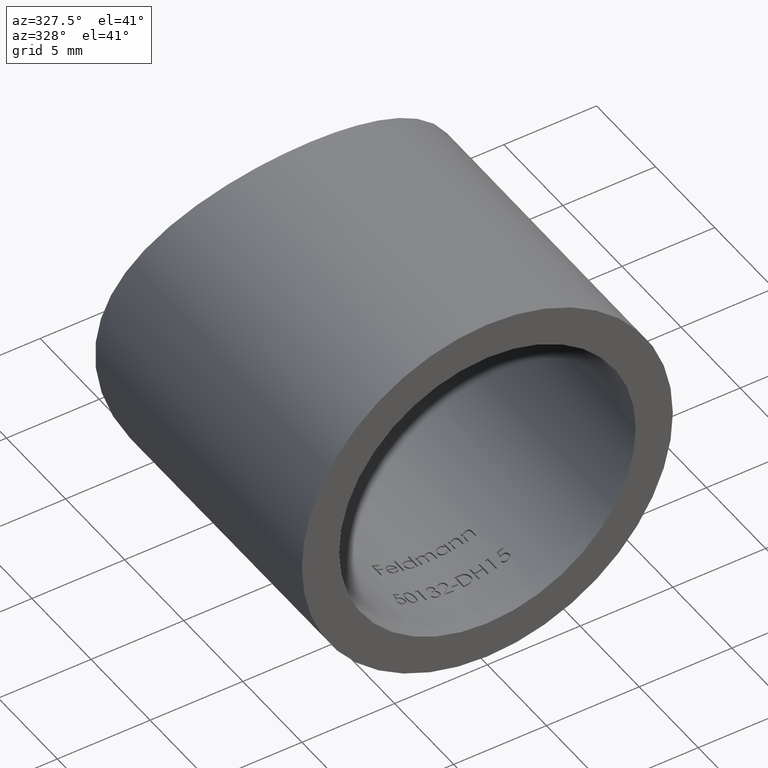
[diagram: clean part render]
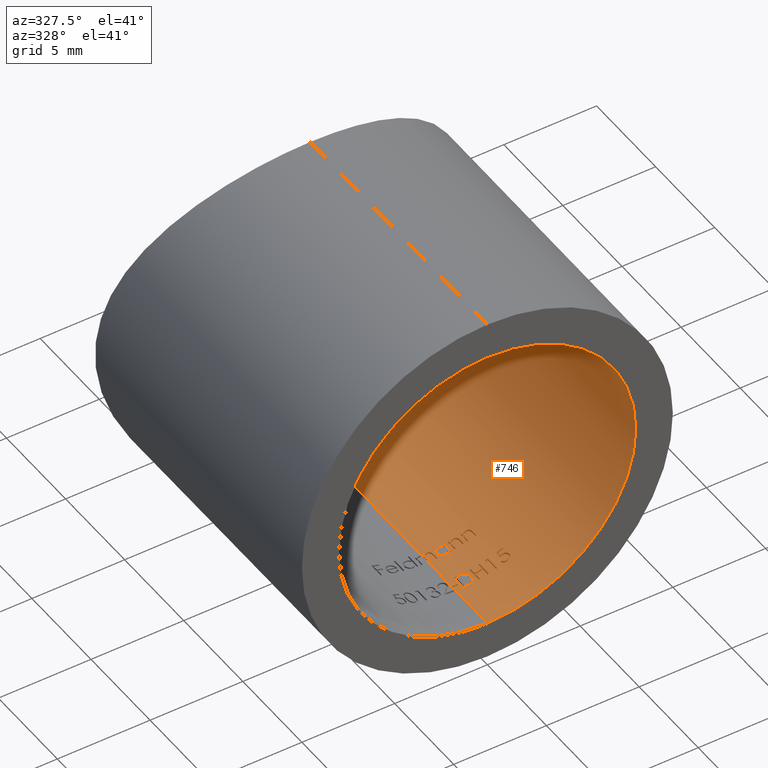
[diagram: same view with one face highlighted and labeled with its STEP entity id]
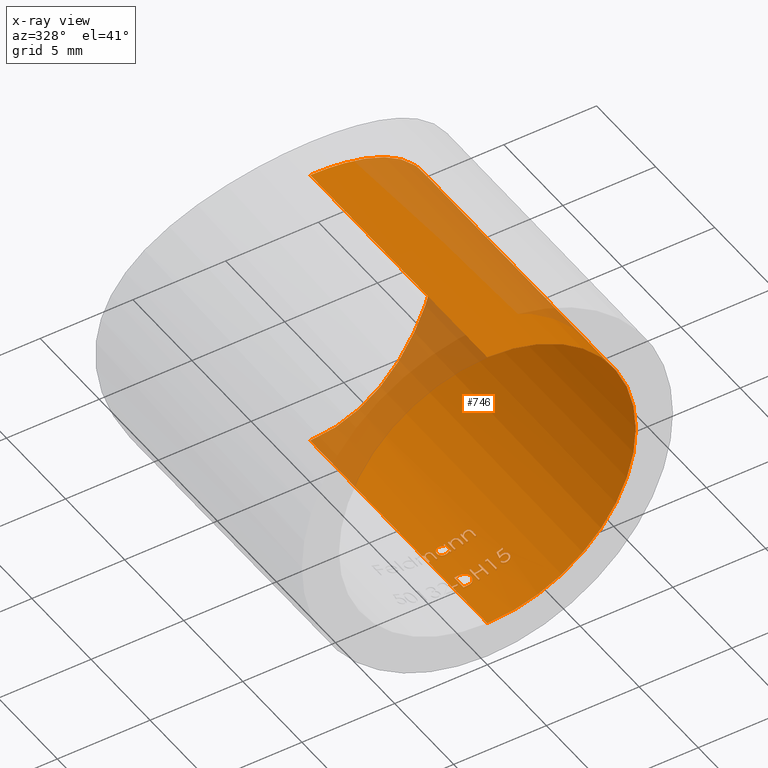
[diagram: x-ray of the same camera — body ghosted, the highlighted face saturated]
A machine part, auxiliary view. The second image highlights one B-rep face of the part: STEP entity #746.
The next image is the same camera in x-ray: the body ghosted, the highlighted face saturated — about 21% of this face is hidden behind the body in this view.
In plain terms, the highlighted cylindrical surface (partial cylindrical patch) has radius 8 mm, axis along (-0, -1, -0).
Its self-contained STEP definition (entity closure, byte-faithful):
#1 = CARTESIAN_POINT ( 'NONE',  ( 0.1634272642635775900, 5.473992273956133300, -7.998378308674820600 ) ) ;
#14 = EDGE_CURVE ( 'NONE', #2000, #8394, #1696, .T. ) ;
#29 = ORIENTED_EDGE ( 'NONE', *, *, #1521, .T. ) ;
#31 = VECTOR ( 'NONE', #10219, 1000.000000000000000 ) ;
#38 = CARTESIAN_POINT ( 'NONE',  ( 9.799569760061210900E-016, 15.00000000000000200, 8.000000000000000000 ) ) ;
#40 = CARTESIAN_POINT ( 'NONE',  ( 2.636507568952690700, 2.697176328430435500, -7.553104201306599200 ) ) ;
#92 = B_SPLINE_CURVE_WITH_KNOTS ( 'NONE', 3,
 ( #1396, #2307, #1482, #11378, #2564, #4289, #1643, #5330, #10633, #8770 ),
 .UNSPECIFIED., .F., .F.,
 ( 4, 2, 2, 2, 4 ),
 ( 0.0000000000000000000, 0.0001050371269541102200, 0.0002100742539082204400, 0.0003151113808623306900, 0.0004201485078164408800 ),
 .UNSPECIFIED. ) ;
#98 = CARTESIAN_POINT ( 'NONE',  ( 2.776057942708335200, 2.656730769230769300, -7.502899592739193000 ) ) ;
#107 = CARTESIAN_POINT ( 'NONE',  ( 0.0000000000000000000, 5.000000000000000900, 0.0000000000000000000 ) ) ;
#113 = CARTESIAN_POINT ( 'NONE',  ( 2.360579427083333100, 5.518990384615384500, -7.643799105708554400 ) ) ;
#117 = DIRECTION ( 'NONE',  ( -0.0000000000000000000, -1.000000000000000000, -0.0000000000000000000 ) ) ;
#134 = LINE ( 'NONE', #3156, #10873 ) ;
#143 = DIRECTION ( 'NONE',  ( 0.0000000000000000000, 0.0000000000000000000, -1.000000000000000000 ) ) ;
#147 = DIRECTION ( 'NONE',  ( 0.0000000000000000000, 0.0000000000000000000, -1.000000000000000000 ) ) ;
#149 = CARTESIAN_POINT ( 'NONE',  ( 1.480649038461538500, 5.475423177083333000, -7.861785956441633700 ) ) ;
#151 = DIRECTION ( 'NONE',  ( -0.0000000000000000000, -1.000000000000000000, -0.0000000000000000000 ) ) ;
#165 = EDGE_CURVE ( 'NONE', #8482, #1579, #3031, .T. ) ;
#166 = CARTESIAN_POINT ( 'NONE',  ( 2.662377659867589700, 2.681334380476574400, -7.544044878043686200 ) ) ;
#174 = CARTESIAN_POINT ( 'NONE',  ( 3.316552025421471800, 15.25961788054496200, 7.284806062970725200 ) ) ;
#185 = CARTESIAN_POINT ( 'NONE',  ( 2.081049679487179600, 5.000000000000000000, -7.724586217494518800 ) ) ;
#187 = CARTESIAN_POINT ( 'NONE',  ( 1.231330128205129400, 2.677083333333333500, -7.904671157953019100 ) ) ;
#195 = VERTEX_POINT ( 'NONE', #11329 ) ;
#199 = VECTOR ( 'NONE', #10420, 1000.000000000000000 ) ;
#203 = CARTESIAN_POINT ( 'NONE',  ( 2.717867678555401200, 2.660961492682528900, -7.524231735370933400 ) ) ;
#215 = DIRECTION ( 'NONE',  ( 0.0000000000000000000, 1.000000000000000000, 0.0000000000000000000 ) ) ;
#248 = B_SPLINE_CURVE_WITH_KNOTS ( 'NONE', 3,
 ( #113, #9105, #8373, #10060, #10179, #11015 ),
 .UNSPECIFIED., .F., .F.,
 ( 4, 2, 4 ),
 ( 0.0000000000000000000, 0.0001364503785084108000, 0.0002729007570168215900 ),
 .UNSPECIFIED. ) ;
#252 = CARTESIAN_POINT ( 'NONE',  ( 0.4935496794871790900, 5.314192708333333600, -7.984761030480380700 ) ) ;
#269 = CARTESIAN_POINT ( 'NONE',  ( 0.0000000000000000000, 2.677083333333337000, 0.0000000000000000000 ) ) ;
#270 = ORIENTED_EDGE ( 'NONE', *, *, #14, .T. ) ;
#276 = EDGE_CURVE ( 'NONE', #6344, #3255, #6547, .T. ) ;
#282 = CARTESIAN_POINT ( 'NONE',  ( 2.035256410256411500, 3.389423076923077100, -7.736777839935057500 ) ) ;
#287 = CARTESIAN_POINT ( 'NONE',  ( 0.6360176282051280800, 5.291614082532051500, -7.974677521794365700 ) ) ;
#290 = CARTESIAN_POINT ( 'NONE',  ( 2.709594100560899200, 3.180650290464743300, -7.527157485412774700 ) ) ;
#294 = CARTESIAN_POINT ( 'NONE',  ( 2.157371794871795900, 3.389423076923077100, -7.703619080580998500 ) ) ;
#311 = ORIENTED_EDGE ( 'NONE', *, *, #6858, .T. ) ;
#318 = DIRECTION ( 'NONE',  ( 0.0000000000000000000, 1.000000000000000000, 0.0000000000000000000 ) ) ;
#319 = VERTEX_POINT ( 'NONE', #10288 ) ;
#335 = AXIS2_PLACEMENT_3D ( 'NONE', #269, #8533, #7515 ) ;
#348 = ORIENTED_EDGE ( 'NONE', *, *, #3577, .T. ) ;
#370 = EDGE_CURVE ( 'NONE', #2654, #11239, #8322, .T. ) ;
#372 = EDGE_CURVE ( 'NONE', #3146, #1828, #556, .T. ) ;
#375 = DIRECTION ( 'NONE',  ( 0.0000000000000000000, 1.000000000000000000, 0.0000000000000000000 ) ) ;
#381 = CARTESIAN_POINT ( 'NONE',  ( 1.343628247196999300E-013, 5.461765395973924500, -8.000000000000000000 ) ) ;
#386 = B_SPLINE_CURVE_WITH_KNOTS ( 'NONE', 3,
 ( #4378, #11549, #1582, #668, #745, #3390, #2428, #9699, #4304, #11427 ),
 .UNSPECIFIED., .F., .F.,
 ( 4, 2, 2, 2, 4 ),
 ( 0.0000000000000000000, 0.0001046892126449411500, 0.0002093784252898823000, 0.0003140676379348234700, 0.0004187568505797646100 ),
 .UNSPECIFIED. ) ;
#395 = VERTEX_POINT ( 'NONE', #4381 ) ;
#401 = LINE ( 'NONE', #11304, #3661 ) ;
#403 = ORIENTED_EDGE ( 'NONE', *, *, #11242, .T. ) ;
#413 = DIRECTION ( 'NONE',  ( 0.0000000000000000000, 1.000000000000000000, 0.0000000000000000000 ) ) ;
#431 = LINE ( 'NONE', #10065, #10035 ) ;
#445 = VERTEX_POINT ( 'NONE', #7170 ) ;
#459 = EDGE_CURVE ( 'NONE', #11239, #5452, #6118, .T. ) ;
#465 = CARTESIAN_POINT ( 'NONE',  ( 2.152382829368581200, 5.235732829476123000, -7.705014481909979700 ) ) ;
#470 = ORIENTED_EDGE ( 'NONE', *, *, #7052, .T. ) ;
#530 = VECTOR ( 'NONE', #740, 1000.000000000000000 ) ;
#532 = AXIS2_PLACEMENT_3D ( 'NONE', #753, #6236, #11434 ) ;
#541 = CIRCLE ( 'NONE', #5184, 8.000000000000000000 ) ;
#543 = CARTESIAN_POINT ( 'NONE',  ( 2.518629807692307500, 5.000000000000000900, -7.593187992655245500 ) ) ;
#553 = EDGE_CURVE ( 'NONE', #2406, #1253, #4961, .T. ) ;
#556 = LINE ( 'NONE', #8364, #850 ) ;
#567 = CARTESIAN_POINT ( 'NONE',  ( 0.1062084697066919800, 5.489410458305739500, -7.999324600062442900 ) ) ;
#572 = EDGE_CURVE ( 'NONE', #6535, #1078, #401, .T. ) ;
#586 = VECTOR ( 'NONE', #6558, 1000.000000000000000 ) ;
#588 = CARTESIAN_POINT ( 'NONE',  ( 1.481146444280926600, 5.261734189708045400, -7.861692362300000300 ) ) ;
#637 = CIRCLE ( 'NONE', #1772, 8.000000000000000000 ) ;
#643 = B_SPLINE_CURVE_WITH_KNOTS ( 'NONE', 3,
 ( #9441, #2197, #4893, #6734, #3199, #7573, #8594, #3998, #4811, #9318 ),
 .UNSPECIFIED., .F., .F.,
 ( 4, 2, 2, 2, 4 ),
 ( 0.0000000000000000000, 0.0001184991278979332700, 0.0002369982557958665400, 0.0003554973836937998000, 0.0004739965115917330800 ),
 .UNSPECIFIED. ) ;
#652 = ORIENTED_EDGE ( 'NONE', *, *, #7018, .T. ) ;
#657 = CARTESIAN_POINT ( 'NONE',  ( 0.4935496794871790900, 5.314192708333333600, -7.984761030480380700 ) ) ;
#664 = EDGE_CURVE ( 'NONE', #2561, #4896, #5222, .T. ) ;
#668 = CARTESIAN_POINT ( 'NONE',  ( 1.831344286367001500, 5.551976420521742600, -7.787628765461455800 ) ) ;
#671 = VERTEX_POINT ( 'NONE', #7734 ) ;
#697 = FACE_BOUND ( 'NONE', #10556, .T. ) ;
#708 = CARTESIAN_POINT ( 'NONE',  ( 1.175360576923076800, 5.100331780849359100, -7.913186937904034900 ) ) ;
#732 = ORIENTED_EDGE ( 'NONE', *, *, #7453, .T. ) ;
#740 = DIRECTION ( 'NONE',  ( -0.0000000000000000000, -1.000000000000000000, -0.0000000000000000000 ) ) ;
#745 = CARTESIAN_POINT ( 'NONE',  ( 1.858429364688281900, 5.528580879386905300, -7.781170986879415000 ) ) ;
#746 = ADVANCED_FACE ( 'NONE', ( #11424, #9017, #5519, #3101, #2103, #1557, #697, #1398 ), #11559, .F. ) ;
#751 = CARTESIAN_POINT ( 'NONE',  ( 1.483861550138616800, 5.313765444231247400, -7.861180380711157800 ) ) ;
#753 = CARTESIAN_POINT ( 'NONE',  ( 0.0000000000000000000, 3.145192307692307000, 0.0000000000000000000 ) ) ;
#754 = DIRECTION ( 'NONE',  ( -0.0000000000000000000, -1.000000000000000000, -0.0000000000000000000 ) ) ;
#789 = CARTESIAN_POINT ( 'NONE',  ( 0.0000000000000000000, 3.470833333333332800, 0.0000000000000000000 ) ) ;
#796 = CARTESIAN_POINT ( 'NONE',  ( 2.901558825061385100, 2.775873435770209100, -7.455291848513509100 ) ) ;
#808 = LINE ( 'NONE', #5124, #10111 ) ;
#826 = CARTESIAN_POINT ( 'NONE',  ( -1.745362013855913500E-016, 15.00000000000000200, -8.000000000000000000 ) ) ;
#836 = CARTESIAN_POINT ( 'NONE',  ( 3.022355769230771200, 3.389423076923077100, -7.407115876250179200 ) ) ;
#850 = VECTOR ( 'NONE', #5828, 1000.000000000000000 ) ;
#888 = DIRECTION ( 'NONE',  ( 0.0000000000000000000, 0.0000000000000000000, -1.000000000000000000 ) ) ;
#890 = CARTESIAN_POINT ( 'NONE',  ( 1.843247542235112200, 5.383316475854446300, -7.784758288968978600 ) ) ;
#930 = DIRECTION ( 'NONE',  ( -0.0000000000000000000, -1.000000000000000000, -0.0000000000000000000 ) ) ;
#957 = AXIS2_PLACEMENT_3D ( 'NONE', #10733, #2633, #8883 ) ;
#970 = CARTESIAN_POINT ( 'NONE',  ( 1.068509615384616800, 3.063941055689102900, -7.928321840202414700 ) ) ;
#973 = B_SPLINE_CURVE_WITH_KNOTS ( 'NONE', 3,
 ( #708, #8681, #2400, #10648, #4185, #9620 ),
 .UNSPECIFIED., .F., .F.,
 ( 4, 2, 4 ),
 ( 2.168404344971008900E-019, 0.0001364599899932676400, 0.0002729199799865350600 ),
 .UNSPECIFIED. ) ;
#980 = CARTESIAN_POINT ( 'NONE',  ( 7.792208709689611500, 16.48390002504727300, -1.830606618588046500 ) ) ;
#1000 = B_SPLINE_CURVE_WITH_KNOTS ( 'NONE', 3,
 ( #6745, #3853, #11082, #2171, #5710, #9367 ),
 .UNSPECIFIED., .F., .F.,
 ( 4, 2, 4 ),
 ( 0.0001040971106843866700, 0.0001759670227199827300, 0.0002478369347555788000 ),
 .UNSPECIFIED. ) ;
#1014 = CIRCLE ( 'NONE', #6289, 8.000000000000000000 ) ;
#1019 = EDGE_CURVE ( 'NONE', #8982, #8482, #643, .T. ) ;
#1020 = CARTESIAN_POINT ( 'NONE',  ( 2.429100386245149200, 5.512264475398424700, -7.622357561648317200 ) ) ;
#1039 = DIRECTION ( 'NONE',  ( 0.0000000000000000000, 0.0000000000000000000, 1.000000000000000000 ) ) ;
#1050 = DIRECTION ( 'NONE',  ( 0.0000000000000000000, 0.0000000000000000000, -1.000000000000000000 ) ) ;
#1066 = CARTESIAN_POINT ( 'NONE',  ( 2.997863279560643700, 2.757940757400072100, -7.417114647287697000 ) ) ;
#1072 = CARTESIAN_POINT ( 'NONE',  ( 3.052884615384617200, 2.936419521233974500, -7.394585554657401100 ) ) ;
#1076 = CARTESIAN_POINT ( 'NONE',  ( 1.918229166666666900, 5.296225210336539000, -7.766620684966486700 ) ) ;
#1078 = VERTEX_POINT ( 'NONE', #5068 ) ;
#1094 = EDGE_CURVE ( 'NONE', #8234, #445, #6668, .T. ) ;
#1095 = VERTEX_POINT ( 'NONE', #9533 ) ;
#1117 = B_SPLINE_CURVE_WITH_KNOTS ( 'NONE', 3,
 ( #4884, #3145, #7690, #2272, #2979, #3879 ),
 .UNSPECIFIED., .F., .F.,
 ( 4, 2, 4 ),
 ( 0.0000000000000000000, 0.0001346754928156623900, 0.0002693509856313247800 ),
 .UNSPECIFIED. ) ;
#1154 = CARTESIAN_POINT ( 'NONE',  ( 2.886653687556257600, 3.102990685415660400, -7.461152434726011900 ) ) ;
#1159 = CARTESIAN_POINT ( 'NONE',  ( 2.615304487179489300, 3.073958333333334000, -7.560435333983011000 ) ) ;
#1169 = VERTEX_POINT ( 'NONE', #6181 ) ;
#1178 = CARTESIAN_POINT ( 'NONE',  ( 0.2849358974358985300, 3.023076923076919900, -7.994924110606203400 ) ) ;
#1192 = CARTESIAN_POINT ( 'NONE',  ( 2.035256410256411500, 3.389423076923077100, -7.736777839935057500 ) ) ;
#1205 = LINE ( 'NONE', #4774, #6620 ) ;
#1210 = AXIS2_PLACEMENT_3D ( 'NONE', #6498, #6414, #1039 ) ;
#1217 = CARTESIAN_POINT ( 'NONE',  ( 2.724820938937466700, 3.184854069164778400, -7.521676192970667300 ) ) ;
#1225 = ORIENTED_EDGE ( 'NONE', *, *, #11172, .T. ) ;
#1231 = CARTESIAN_POINT ( 'NONE',  ( 2.790209334935899400, 3.114663461538462300, -7.497648422487984000 ) ) ;
#1234 = ORIENTED_EDGE ( 'NONE', *, *, #9464, .T. ) ;
#1240 = CARTESIAN_POINT ( 'NONE',  ( 2.152283653846153800, 5.475423177083333000, -7.705042185049127700 ) ) ;
#1253 = VERTEX_POINT ( 'NONE', #6354 ) ;
#1284 = VERTEX_POINT ( 'NONE', #5327 ) ;
#1303 = VECTOR ( 'NONE', #3989, 1000.000000000000000 ) ;
#1316 = AXIS2_PLACEMENT_3D ( 'NONE', #7404, #10062, #6677 ) ;
#1318 = CARTESIAN_POINT ( 'NONE',  ( 2.330184399763171000, 5.588841819415580200, -7.653250876581974000 ) ) ;
#1335 = ORIENTED_EDGE ( 'NONE', *, *, #4022, .T. ) ;
#1350 = ORIENTED_EDGE ( 'NONE', *, *, #5371, .T. ) ;
#1366 = EDGE_CURVE ( 'NONE', #11071, #10711, #541, .T. ) ;
#1380 = CARTESIAN_POINT ( 'NONE',  ( 0.6617130660985073300, 3.469784138159171000, -7.972697283839073300 ) ) ;
#1396 = CARTESIAN_POINT ( 'NONE',  ( 2.372981770833333400, 5.590224358974359700, -7.639957952455804800 ) ) ;
#1398 = FACE_BOUND ( 'NONE', #3973, .T. ) ;
#1406 = AXIS2_PLACEMENT_3D ( 'NONE', #11191, #7824, #6949 ) ;
#1415 = DIRECTION ( 'NONE',  ( -0.0000000000000000000, -1.000000000000000000, -0.0000000000000000000 ) ) ;
#1421 = CARTESIAN_POINT ( 'NONE',  ( 2.152283653846153800, 5.209726812900641800, -7.705042185049127700 ) ) ;
#1424 = CARTESIAN_POINT ( 'NONE',  ( 0.5775040064102579000, 3.470833333333332800, -7.979128343533528100 ) ) ;
#1448 = CIRCLE ( 'NONE', #6731, 8.000000000000000000 ) ;
#1465 = CARTESIAN_POINT ( 'NONE',  ( 5.477445416143513800, 15.71894802507713100, -5.836466890217986100 ) ) ;
#1482 = CARTESIAN_POINT ( 'NONE',  ( 2.440119831380985500, 5.583683009209942800, -7.618849070329137200 ) ) ;
#1486 = CARTESIAN_POINT ( 'NONE',  ( 0.2746644371914006000, 5.589339951909011900, -7.995315319836867800 ) ) ;
#1490 = B_SPLINE_CURVE_WITH_KNOTS ( 'NONE', 3,
 ( #3568, #3652, #9007, #11653, #3609, #4521, #5451, #5376, #7266, #11722 ),
 .UNSPECIFIED., .F., .F.,
 ( 4, 3, 3, 4 ),
 ( 0.0000000000000000000, 3.314358225855662700E-005, 6.629400865704933300E-005, 0.0001325930957648235600 ),
 .UNSPECIFIED. ) ;
#1521 = EDGE_CURVE ( 'NONE', #4976, #11135, #1000, .T. ) ;
#1538 = VERTEX_POINT ( 'NONE', #294 ) ;
#1548 = ORIENTED_EDGE ( 'NONE', *, *, #370, .T. ) ;
#1552 = CARTESIAN_POINT ( 'NONE',  ( 2.163254957932692500, 5.365392127403847400, -7.701969098028088800 ) ) ;
#1557 = FACE_BOUND ( 'NONE', #8291, .T. ) ;
#1565 = CARTESIAN_POINT ( 'NONE',  ( 0.4143802492147613000, 5.432795342840523600, -7.989268422565953800 ) ) ;
#1576 = CARTESIAN_POINT ( 'NONE',  ( 1.838567958733974500, 5.404825220352564400, -7.785863334346215600 ) ) ;
#1577 = DIRECTION ( 'NONE',  ( 0.0000000000000000000, 0.0000000000000000000, 1.000000000000000000 ) ) ;
#1579 = VERTEX_POINT ( 'NONE', #7028 ) ;
#1582 = CARTESIAN_POINT ( 'NONE',  ( 1.770226649447094800, 5.583125679117965300, -7.801748604860268400 ) ) ;
#1591 = EDGE_CURVE ( 'NONE', #8284, #3612, #5375, .T. ) ;
#1610 = ORIENTED_EDGE ( 'NONE', *, *, #10908, .T. ) ;
#1611 = LINE ( 'NONE', #5878, #31 ) ;
#1630 = CARTESIAN_POINT ( 'NONE',  ( 1.175360576923076800, 5.000000000000000900, -7.913186937904036700 ) ) ;
#1631 = CARTESIAN_POINT ( 'NONE',  ( 0.9206515869561261400, 2.735216097781120800, -7.946938114939119800 ) ) ;
#1643 = CARTESIAN_POINT ( 'NONE',  ( 2.577817453481555000, 5.437546735368943700, -7.573301083255121700 ) ) ;
#1653 = B_SPLINE_CURVE_WITH_KNOTS ( 'NONE', 3,
 ( #2608, #5518, #8176, #2719, #4591, #9984 ),
 .UNSPECIFIED., .F., .F.,
 ( 4, 2, 4 ),
 ( 0.0000000000000000000, 0.0001377816229588623300, 0.0002755632459177246500 ),
 .UNSPECIFIED. ) ;
#1663 = CARTESIAN_POINT ( 'NONE',  ( 2.955656217756843500, 2.834153237419022400, -7.433991428015629800 ) ) ;
#1670 = ORIENTED_EDGE ( 'NONE', *, *, #7563, .T. ) ;
#1673 = CARTESIAN_POINT ( 'NONE',  ( 2.228605769230770100, 2.677083333333333500, -7.683314149854299800 ) ) ;
#1676 = CARTESIAN_POINT ( 'NONE',  ( 0.3924156145359326600, 5.474782535821925800, -7.990377394354859500 ) ) ;
#1696 = CIRCLE ( 'NONE', #1210, 8.000000000000000000 ) ;
#1729 = CARTESIAN_POINT ( 'NONE',  ( 2.152283653846153800, 5.209726812900641800, -7.705042185049127700 ) ) ;
#1759 = DIRECTION ( 'NONE',  ( 0.0000000000000000000, 0.0000000000000000000, -1.000000000000000000 ) ) ;
#1772 = AXIS2_PLACEMENT_3D ( 'NONE', #5027, #5145, #2394 ) ;
#1776 = ORIENTED_EDGE ( 'NONE', *, *, #5165, .T. ) ;
#1785 = CARTESIAN_POINT ( 'NONE',  ( 1.480649038461538500, 5.475423177083333000, -7.861785956441633700 ) ) ;
#1792 = CARTESIAN_POINT ( 'NONE',  ( 0.0000000000000000000, 3.389423076923074400, 0.0000000000000000000 ) ) ;
#1807 = CARTESIAN_POINT ( 'NONE',  ( 2.879474302272961400, 2.761400245853921300, -7.463865798189315700 ) ) ;
#1828 = VERTEX_POINT ( 'NONE', #2416 ) ;
#1835 = B_SPLINE_CURVE_WITH_KNOTS ( 'NONE', 3,
 ( #5920, #8123, #4733, #1928, #9490, #2155, #3072, #5144, #6183, #7993, #9416, #5873, #1465, #5313, #10800, #9127, #5542, #2868, #8238, #3622, #980, #1885, #6343, #1845, #7350, #6431, #10838, #9168, #2824, #10044, #9886, #11106, #10200, #3070, #4699, #2984, #4809, #11000, #174, #7420, #9005, #10718, #10987, #5610, #8266, #38 ),
 .UNSPECIFIED., .F., .F.,
 ( 4, 2, 2, 2, 2, 2, 2, 2, 2, 2, 2, 2, 2, 2, 2, 2, 2, 2, 2, 2, 2, 2, 4 ),
 ( 2.708887720596819800E-019, 0.001577985321820048800, 0.002366977982730072800, 0.003155970643640097100, 0.004733955965460143900, 0.005522948626370167300, 0.006311941287280189800, 0.007889926609100235800, 0.009467911930920280800, 0.01025690459183030200, 0.01104589725274032400, 0.01262388257456036900, 0.01420186789638041300, 0.01577985321820045800, 0.01735783854002050100, 0.01814683120093052100, 0.01893582386184054400, 0.02051380918366059100, 0.02130280184457061800, 0.02209179450548064100, 0.02366977982730068800, 0.02445877248821071500, 0.02524776514912073800 ),
 .UNSPECIFIED. ) ;
#1837 = ORIENTED_EDGE ( 'NONE', *, *, #9294, .T. ) ;
#1845 = CARTESIAN_POINT ( 'NONE',  ( 8.000295946163763700, 16.56749468669876900, 0.5229173374466646900 ) ) ;
#1871 = CARTESIAN_POINT ( 'NONE',  ( 0.09667467948717913000, 36.20000000000000300, -7.999415854069972000 ) ) ;
#1874 = CARTESIAN_POINT ( 'NONE',  ( 2.605128205128207000, 2.880608974358975300, -7.563947847179109700 ) ) ;
#1879 = CARTESIAN_POINT ( 'NONE',  ( 2.081844701522436800, 3.470833333333333700, -7.724371989925326300 ) ) ;
#1885 = CARTESIAN_POINT ( 'NONE',  ( 7.947757351596415300, 16.54584999876820800, -1.054372680634935200 ) ) ;
#1899 = CARTESIAN_POINT ( 'NONE',  ( 3.023586518594439300, 3.071163875688787100, -7.406625057742790100 ) ) ;
#1928 = CARTESIAN_POINT ( 'NONE',  ( 1.830081285274577600, 15.07756149186166500, -7.792284957383528400 ) ) ;
#1939 = EDGE_CURVE ( 'NONE', #1078, #8189, #2015, .T. ) ;
#1957 = CARTESIAN_POINT ( 'NONE',  ( 1.175360576923076800, 36.20000000000000300, -7.913186937904034900 ) ) ;
#1971 = CARTESIAN_POINT ( 'NONE',  ( 2.847893218501367700, 2.657381608418247800, -7.476320683416605400 ) ) ;
#1972 = DIRECTION ( 'NONE',  ( 0.0000000000000000000, 1.000000000000000000, 0.0000000000000000000 ) ) ;
#2000 = VERTEX_POINT ( 'NONE', #9863 ) ;
#2014 = LINE ( 'NONE', #5117, #3969 ) ;
#2015 = B_SPLINE_CURVE_WITH_KNOTS ( 'NONE', 3,
 ( #2526, #8890, #5171, #7118, #1565, #1676, #9718, #11571, #8769, #6249 ),
 .UNSPECIFIED., .F., .F.,
 ( 4, 2, 2, 2, 4 ),
 ( 0.0000000000000000000, 7.056554784278289800E-005, 0.0001411310956855658000, 0.0002116966435283487100, 0.0002822621913711315900 ),
 .UNSPECIFIED. ) ;
#2045 = LINE ( 'NONE', #10138, #9665 ) ;
#2062 = CARTESIAN_POINT ( 'NONE',  ( 2.790209334935899400, 3.114663461538462300, -7.497648422487984000 ) ) ;
#2063 = EDGE_CURVE ( 'NONE', #7300, #4907, #6372, .T. ) ;
#2065 = ORIENTED_EDGE ( 'NONE', *, *, #1591, .T. ) ;
#2067 = LINE ( 'NONE', #7371, #11093 ) ;
#2103 = FACE_BOUND ( 'NONE', #9683, .T. ) ;
#2136 = CARTESIAN_POINT ( 'NONE',  ( 2.632802871764124800, 3.080687177671787200, -7.554382295804521700 ) ) ;
#2153 = CIRCLE ( 'NONE', #3142, 8.000000000000000000 ) ;
#2155 = CARTESIAN_POINT ( 'NONE',  ( 2.590409988903058700, 15.15731968653643800, -7.573610023513878400 ) ) ;
#2171 = CARTESIAN_POINT ( 'NONE',  ( 0.06681514591235673800, 5.495681641637372800, -7.999732629639170000 ) ) ;
#2197 = CARTESIAN_POINT ( 'NONE',  ( 0.8988468239735605300, 4.990898836196722100, -7.949444269945524300 ) ) ;
#2220 = CARTESIAN_POINT ( 'NONE',  ( 0.02544070512820473900, 5.294953175080127700, -7.999959548055386400 ) ) ;
#2222 = CARTESIAN_POINT ( 'NONE',  ( 0.02544070512820473900, 5.000000000000000900, -7.999959548055388200 ) ) ;
#2238 = LINE ( 'NONE', #8712, #530 ) ;
#2261 = ORIENTED_EDGE ( 'NONE', *, *, #2321, .T. ) ;
#2272 = CARTESIAN_POINT ( 'NONE',  ( 1.530428242331149500, 5.448332978138241200, -7.852329759494973700 ) ) ;
#2289 = CARTESIAN_POINT ( 'NONE',  ( 2.152283653846153800, 5.580048076923076500, -7.705042185049128600 ) ) ;
#2301 = CARTESIAN_POINT ( 'NONE',  ( 0.7887719076042288800, 5.554119342741883800, -7.961103401108522000 ) ) ;
#2307 = CARTESIAN_POINT ( 'NONE',  ( 2.406861333916974700, 5.588975137193435700, -7.629434912132600400 ) ) ;
#2317 = VERTEX_POINT ( 'NONE', #4169 ) ;
#2321 = EDGE_CURVE ( 'NONE', #9678, #8234, #2238, .T. ) ;
#2328 = ORIENTED_EDGE ( 'NONE', *, *, #6443, .T. ) ;
#2374 = VERTEX_POINT ( 'NONE', #4441 ) ;
#2384 = CARTESIAN_POINT ( 'NONE',  ( 0.2524205782524653900, 5.586922705319894400, -7.996044755502991200 ) ) ;
#2394 = DIRECTION ( 'NONE',  ( 0.0000000000000000000, 0.0000000000000000000, 1.000000000000000000 ) ) ;
#2400 = CARTESIAN_POINT ( 'NONE',  ( 1.110704221130491200, 5.035967173285593300, -7.922627584743003700 ) ) ;
#2406 = VERTEX_POINT ( 'NONE', #9004 ) ;
#2407 = VECTOR ( 'NONE', #3539, 1000.000000000000000 ) ;
#2410 = CARTESIAN_POINT ( 'NONE',  ( 1.061124411638215900, 2.957440923959950000, -7.929335935590578400 ) ) ;
#2416 = CARTESIAN_POINT ( 'NONE',  ( 0.0000000000000000000, 3.023076923076919900, -8.000000000000000000 ) ) ;
#2428 = CARTESIAN_POINT ( 'NONE',  ( 1.906503509587088600, 5.436150771103531700, -7.769509193517206900 ) ) ;
#2439 = CARTESIAN_POINT ( 'NONE',  ( 0.7668419313267763600, 3.458109050632912400, -7.963162277158429200 ) ) ;
#2445 = VERTEX_POINT ( 'NONE', #7198 ) ;
#2470 = CARTESIAN_POINT ( 'NONE',  ( 1.491620342548077000, 5.365392127403846500, -7.859711747494099400 ) ) ;
#2486 = B_SPLINE_CURVE_WITH_KNOTS ( 'NONE', 3,
 ( #10213, #5709, #6599, #5790, #1066, #7395, #1971, #98 ),
 .UNSPECIFIED., .F., .F.,
 ( 4, 2, 2, 4 ),
 ( 0.0000000000000000000, 0.0001136178221819291900, 0.0002272356443638583900, 0.0004544712887277177000 ),
 .UNSPECIFIED. ) ;
#2510 = CARTESIAN_POINT ( 'NONE',  ( 9.799569760061210900E-016, 15.00000000000000200, 8.000000000000000000 ) ) ;
#2517 = VERTEX_POINT ( 'NONE', #5648 ) ;
#2526 = CARTESIAN_POINT ( 'NONE',  ( 0.4223157051282047700, 5.314510717147435900, -7.988845313635883900 ) ) ;
#2536 = CARTESIAN_POINT ( 'NONE',  ( 0.2971792367788457200, 5.590224358974359700, -7.994478375805862800 ) ) ;
#2543 = ORIENTED_EDGE ( 'NONE', *, *, #10722, .T. ) ;
#2544 = CIRCLE ( 'NONE', #335, 8.000000000000000000 ) ;
#2547 = ORIENTED_EDGE ( 'NONE', *, *, #5268, .T. ) ;
#2561 = VERTEX_POINT ( 'NONE', #4562 ) ;
#2564 = CARTESIAN_POINT ( 'NONE',  ( 2.528771293258809600, 5.529963356941805400, -7.589843852645140400 ) ) ;
#2570 = CARTESIAN_POINT ( 'NONE',  ( 0.0000000000000000000, 3.470833333333332800, 0.0000000000000000000 ) ) ;
#2573 = CARTESIAN_POINT ( 'NONE',  ( 2.776057942708335200, 2.656730769230769300, -7.502899592739193000 ) ) ;
#2597 = ORIENTED_EDGE ( 'NONE', *, *, #459, .T. ) ;
#2608 = CARTESIAN_POINT ( 'NONE',  ( 0.9406700721153845600, 5.590224358974359700, -7.944503748845892100 ) ) ;
#2618 = EDGE_CURVE ( 'NONE', #4668, #6311, #9910, .T. ) ;
#2620 = ORIENTED_EDGE ( 'NONE', *, *, #6083, .T. ) ;
#2633 = DIRECTION ( 'NONE',  ( 0.0000000000000000000, 1.000000000000000000, 0.0000000000000000000 ) ) ;
#2654 = VERTEX_POINT ( 'NONE', #7642 ) ;
#2655 = CARTESIAN_POINT ( 'NONE',  ( 1.846933895627605300, 5.283899241981811400, -7.783883040562123800 ) ) ;
#2657 = CARTESIAN_POINT ( 'NONE',  ( 2.981650641025642900, 2.939440604967948900, -7.423594779813305100 ) ) ;
#2692 = CARTESIAN_POINT ( 'NONE',  ( 0.8293669871794886500, 3.442212540064102800, -7.956893263113237000 ) ) ;
#2695 = CARTESIAN_POINT ( 'NONE',  ( 0.1403915604884266000, 5.448793362987504300, -7.998782216206838500 ) ) ;
#2698 = DIRECTION ( 'NONE',  ( 0.0000000000000000000, 0.0000000000000000000, 1.000000000000000000 ) ) ;
#2719 = CARTESIAN_POINT ( 'NONE',  ( 1.113798504653080900, 5.541824484620923900, -7.922193353675666600 ) ) ;
#2723 = DIRECTION ( 'NONE',  ( 0.0000000000000000000, 0.0000000000000000000, 1.000000000000000000 ) ) ;
#2737 = ORIENTED_EDGE ( 'NONE', *, *, #10335, .T. ) ;
#2741 = CARTESIAN_POINT ( 'NONE',  ( 0.09688286434258174000, 5.258591433949031400, -7.999413338110742600 ) ) ;
#2761 = VERTEX_POINT ( 'NONE', #4848 ) ;
#2781 = EDGE_CURVE ( 'NONE', #319, #4490, #9983, .T. ) ;
#2795 = DIRECTION ( 'NONE',  ( 0.0000000000000000000, -1.000000000000000000, 0.0000000000000000000 ) ) ;
#2820 = LINE ( 'NONE', #10362, #9603 ) ;
#2824 = CARTESIAN_POINT ( 'NONE',  ( 6.933797699331198500, 16.16365971007833100, 4.023856254664492500 ) ) ;
#2868 = CARTESIAN_POINT ( 'NONE',  ( 7.484001771754024400, 16.36464965533273400, -2.838554362726789300 ) ) ;
#2877 = ORIENTED_EDGE ( 'NONE', *, *, #11459, .T. ) ;
#2892 = CARTESIAN_POINT ( 'NONE',  ( 0.2849358974358985300, 2.941666666666666400, -7.994924110606201700 ) ) ;
#2898 = CARTESIAN_POINT ( 'NONE',  ( 2.533894230769232300, 2.880608974358974500, -7.588107802823730100 ) ) ;
#2902 = VERTEX_POINT ( 'NONE', #8148 ) ;
#2963 = CARTESIAN_POINT ( 'NONE',  ( 2.981650641025642900, 2.939440604967948900, -7.423594779813305100 ) ) ;
#2979 = CARTESIAN_POINT ( 'NONE',  ( 1.504391056613702900, 5.409236208275734400, -7.857288114477886300 ) ) ;
#2984 = CARTESIAN_POINT ( 'NONE',  ( 4.240371879425437000, 15.42722681743415000, 6.788737650995892100 ) ) ;
#3003 = DIRECTION ( 'NONE',  ( 0.0000000000000000000, 1.000000000000000000, 0.0000000000000000000 ) ) ;
#3031 = B_SPLINE_CURVE_WITH_KNOTS ( 'NONE', 3,
 ( #6801, #8618, #7682, #3225, #8575, #7718, #2301, #7758, #5925, #11245 ),
 .UNSPECIFIED., .F., .F.,
 ( 4, 2, 2, 2, 4 ),
 ( 0.0000000000000000000, 0.0001181810320885578300, 0.0002363620641771156600, 0.0003545430962656735200, 0.0004727241283542313200 ),
 .UNSPECIFIED. ) ;
#3037 = VERTEX_POINT ( 'NONE', #1240 ) ;
#3042 = ORIENTED_EDGE ( 'NONE', *, *, #1366, .T. ) ;
#3062 = VECTOR ( 'NONE', #754, 1000.000000000000000 ) ;
#3070 = CARTESIAN_POINT ( 'NONE',  ( 5.287714964287945700, 15.66649006647155100, 6.025707825723639400 ) ) ;
#3072 = CARTESIAN_POINT ( 'NONE',  ( 2.840076410207415000, 15.18967708295580200, -7.483487922326565600 ) ) ;
#3082 = DIRECTION ( 'NONE',  ( -0.0000000000000000000, -1.000000000000000000, -0.0000000000000000000 ) ) ;
#3094 = B_SPLINE_CURVE_WITH_KNOTS ( 'NONE', 3,
 ( #8827, #2655, #6302, #5262, #9878, #6187, #7997, #9774, #890, #8906 ),
 .UNSPECIFIED., .F., .F.,
 ( 4, 3, 3, 4 ),
 ( 0.0000000000000000000, 3.314357730992021700E-005, 6.629366828124060500E-005, 0.0001325633085106267500 ),
 .UNSPECIFIED. ) ;
#3096 = CARTESIAN_POINT ( 'NONE',  ( 2.721757012832251000, 3.106981865684720100, -7.522768025341368200 ) ) ;
#3101 = FACE_BOUND ( 'NONE', #5744, .T. ) ;
#3118 = CARTESIAN_POINT ( 'NONE',  ( 3.487507282575852000E-013, 5.563654697996691200, -8.000000000000000000 ) ) ;
#3129 = ORIENTED_EDGE ( 'NONE', *, *, #9999, .T. ) ;
#3141 = LINE ( 'NONE', #10969, #586 ) ;
#3142 = AXIS2_PLACEMENT_3D ( 'NONE', #10165, #215, #3843 ) ;
#3145 = CARTESIAN_POINT ( 'NONE',  ( 1.644545726756796700, 5.518153973497540200, -7.829274078206379900 ) ) ;
#3146 = VERTEX_POINT ( 'NONE', #381 ) ;
#3156 = CARTESIAN_POINT ( 'NONE',  ( 1.780849358974360100, 36.20000000000000300, -7.799267629761181400 ) ) ;
#3168 = CARTESIAN_POINT ( 'NONE',  ( 2.155498104292163000, 5.313787379043359000, -7.704143695863142400 ) ) ;
#3188 = CARTESIAN_POINT ( 'NONE',  ( 0.1344823245090075400, 5.525574527679338200, -7.998954463000044000 ) ) ;
#3199 = CARTESIAN_POINT ( 'NONE',  ( 0.7532220158496313300, 5.049405336587637000, -7.964512449635311200 ) ) ;
#3223 = CARTESIAN_POINT ( 'NONE',  ( 1.302564102564103700, 3.470833333333332800, -7.893245641604686100 ) ) ;
#3225 = CARTESIAN_POINT ( 'NONE',  ( 0.6747212923432409600, 5.443845294201143000, -7.971511781569905300 ) ) ;
#3240 = DIRECTION ( 'NONE',  ( 0.0000000000000000000, 1.000000000000000000, 0.0000000000000000000 ) ) ;
#3245 = CARTESIAN_POINT ( 'NONE',  ( 2.763411022586695200, 3.193084380937315700, -7.507571447261253400 ) ) ;
#3255 = VERTEX_POINT ( 'NONE', #6907 ) ;
#3312 = DIRECTION ( 'NONE',  ( 0.0000000000000000000, 0.0000000000000000000, -1.000000000000000000 ) ) ;
#3331 = ORIENTED_EDGE ( 'NONE', *, *, #165, .T. ) ;
#3332 = LINE ( 'NONE', #10215, #7167 ) ;
#3333 = DIRECTION ( 'NONE',  ( -0.0000000000000000000, -1.000000000000000000, -0.0000000000000000000 ) ) ;
#3363 = CARTESIAN_POINT ( 'NONE',  ( 0.7459083217947680700, 3.461754438484374600, -7.965178155901628400 ) ) ;
#3374 = B_SPLINE_CURVE_WITH_KNOTS ( 'NONE', 3,
 ( #2536, #6972, #8865, #3500, #9805, #5140, #11419, #5182, #6101, #657 ),
 .UNSPECIFIED., .F., .F.,
 ( 4, 2, 2, 2, 4 ),
 ( 0.0000000000000000000, 9.567672761723651900E-005, 0.0001913534552344730400, 0.0002870301828517096500, 0.0003827069104689462400 ),
 .UNSPECIFIED. ) ;
#3390 = CARTESIAN_POINT ( 'NONE',  ( 1.896408983686722800, 5.470637517625196000, -7.772001968423703400 ) ) ;
#3401 = DIRECTION ( 'NONE',  ( 0.0000000000000000000, 0.0000000000000000000, -1.000000000000000000 ) ) ;
#3406 = CARTESIAN_POINT ( 'NONE',  ( 1.701347155448718100, 5.590224358974359700, -7.816995449445173900 ) ) ;
#3423 = CARTESIAN_POINT ( 'NONE',  ( 1.231330128205129400, 36.20000000000000300, -7.904671157953019100 ) ) ;
#3439 = CARTESIAN_POINT ( 'NONE',  ( 1.302564102564103700, 3.145192307692307400, -7.893245641604684300 ) ) ;
#3444 = LINE ( 'NONE', #9927, #5856 ) ;
#3487 = EDGE_CURVE ( 'NONE', #4710, #5536, #8645, .T. ) ;
#3500 = CARTESIAN_POINT ( 'NONE',  ( 0.4179419729497339500, 5.552736187541960100, -7.989125155806752900 ) ) ;
#3534 = CARTESIAN_POINT ( 'NONE',  ( 1.723115036676802400, 5.517977175006972600, -7.812304182729589800 ) ) ;
#3539 = DIRECTION ( 'NONE',  ( 0.0000000000000000000, 1.000000000000000000, 0.0000000000000000000 ) ) ;
#3548 = CARTESIAN_POINT ( 'NONE',  ( 0.2847768930288457900, 5.518990384615384500, -7.994929775876510500 ) ) ;
#3554 = ORIENTED_EDGE ( 'NONE', *, *, #8281, .T. ) ;
#3563 = EDGE_CURVE ( 'NONE', #10996, #10270, #3374, .T. ) ;
#3568 = CARTESIAN_POINT ( 'NONE',  ( 2.518629807692307500, 5.272851562499999600, -7.593187992655244600 ) ) ;
#3577 = EDGE_CURVE ( 'NONE', #4847, #2761, #4746, .T. ) ;
#3604 = DIRECTION ( 'NONE',  ( 0.0000000000000000000, 0.0000000000000000000, -1.000000000000000000 ) ) ;
#3606 = CIRCLE ( 'NONE', #3857, 8.000000000000000000 ) ;
#3609 = CARTESIAN_POINT ( 'NONE',  ( 2.518221436489960700, 5.317041991002398000, -7.593323437110184300 ) ) ;
#3612 = VERTEX_POINT ( 'NONE', #6825 ) ;
#3622 = CARTESIAN_POINT ( 'NONE',  ( 7.726818692974105400, 16.45808787191126000, -2.089391993706107600 ) ) ;
#3640 = ORIENTED_EDGE ( 'NONE', *, *, #8433, .T. ) ;
#3645 = CARTESIAN_POINT ( 'NONE',  ( 1.758116458005404900, 5.512035265307743800, -7.804475938072899400 ) ) ;
#3652 = CARTESIAN_POINT ( 'NONE',  ( 2.518568511053749700, 5.283899234496963100, -7.593208324502834100 ) ) ;
#3661 = VECTOR ( 'NONE', #8631, 1000.000000000000000 ) ;
#3663 = ORIENTED_EDGE ( 'NONE', *, *, #8580, .T. ) ;
#3667 = CARTESIAN_POINT ( 'NONE',  ( 2.510202574118590000, 5.404825220352564400, -7.595978082965247700 ) ) ;
#3691 = ORIENTED_EDGE ( 'NONE', *, *, #7162, .T. ) ;
#3710 = VECTOR ( 'NONE', #413, 1000.000000000000000 ) ;
#3717 = CARTESIAN_POINT ( 'NONE',  ( 0.0000000000000000000, 36.20000000000000300, -8.000000000000000000 ) ) ;
#3743 = B_SPLINE_CURVE_WITH_KNOTS ( 'NONE', 3,
 ( #1874, #8307, #10037, #9996, #10911, #7378, #4649, #5533 ),
 .UNSPECIFIED., .F., .F.,
 ( 4, 2, 2, 4 ),
 ( 9.697399036122160600E-019, 6.340244205263607400E-005, 0.0001268048841052711700, 0.0002536097682105414200 ),
 .UNSPECIFIED. ) ;
#3745 = CARTESIAN_POINT ( 'NONE',  ( 0.4172275641025655100, 2.677083333333337000, -7.989112664104384400 ) ) ;
#3762 = DIRECTION ( 'NONE',  ( 0.0000000000000000000, 0.0000000000000000000, 1.000000000000000000 ) ) ;
#3785 = CARTESIAN_POINT ( 'NONE',  ( 3.052131737806661200, 2.971521698678875300, -7.394896383216761600 ) ) ;
#3807 = VERTEX_POINT ( 'NONE', #5671 ) ;
#3832 = CARTESIAN_POINT ( 'NONE',  ( 1.409415064102564200, 5.000000000000000000, -7.874868200616487200 ) ) ;
#3843 = DIRECTION ( 'NONE',  ( 0.0000000000000000000, 0.0000000000000000000, 1.000000000000000000 ) ) ;
#3853 = CARTESIAN_POINT ( 'NONE',  ( 0.02092101797199710100, 5.551678742391951400, -8.000000000000005300 ) ) ;
#3856 = CARTESIAN_POINT ( 'NONE',  ( 2.867945004318204600, 3.191027633193365400, -7.468331864322868400 ) ) ;
#3857 = AXIS2_PLACEMENT_3D ( 'NONE', #10217, #3003, #10260 ) ;
#3879 = CARTESIAN_POINT ( 'NONE',  ( 1.491620342548077000, 5.365392127403846500, -7.859711747494099400 ) ) ;
#3881 = VECTOR ( 'NONE', #4796, 1000.000000000000000 ) ;
#3906 = CARTESIAN_POINT ( 'NONE',  ( 2.977320056176796700, 2.990052317365295800, -7.425340365163798100 ) ) ;
#3919 = EDGE_CURVE ( 'NONE', #7265, #10979, #2486, .T. ) ;
#3939 = CARTESIAN_POINT ( 'NONE',  ( 2.081049679487179600, 5.580048076923076500, -7.724586217494518800 ) ) ;
#3950 = EDGE_CURVE ( 'NONE', #10077, #5956, #5482, .T. ) ;
#3960 = CARTESIAN_POINT ( 'NONE',  ( 2.081844701522436800, 3.470833333333333700, -7.724371989925326300 ) ) ;
#3969 = VECTOR ( 'NONE', #3333, 1000.000000000000000 ) ;
#3973 = EDGE_LOOP ( 'NONE', ( #7341, #3691, #9080, #2261, #4550, #4174, #2737, #11669, #6637, #470, #10006, #7964, #7927, #6775 ) ) ;
#3984 = ORIENTED_EDGE ( 'NONE', *, *, #2063, .T. ) ;
#3988 = ORIENTED_EDGE ( 'NONE', *, *, #11547, .T. ) ;
#3989 = DIRECTION ( 'NONE',  ( 0.0000000000000000000, 1.000000000000000000, 0.0000000000000000000 ) ) ;
#3998 = CARTESIAN_POINT ( 'NONE',  ( 0.6429976250702501600, 5.211395669349617100, -7.974132399648890900 ) ) ;
#4022 = EDGE_CURVE ( 'NONE', #6446, #3037, #11530, .T. ) ;
#4025 = ORIENTED_EDGE ( 'NONE', *, *, #5651, .T. ) ;
#4070 = CARTESIAN_POINT ( 'NONE',  ( 2.605128205128207000, 2.880608974358975300, -7.563947847179109700 ) ) ;
#4095 = ORIENTED_EDGE ( 'NONE', *, *, #664, .T. ) ;
#4142 = DIRECTION ( 'NONE',  ( 0.0000000000000000000, 0.0000000000000000000, -1.000000000000000000 ) ) ;
#4152 = CIRCLE ( 'NONE', #6964, 8.000000000000000000 ) ;
#4169 = CARTESIAN_POINT ( 'NONE',  ( 1.480649038461538500, 5.209726812900641800, -7.861785956441635500 ) ) ;
#4174 = ORIENTED_EDGE ( 'NONE', *, *, #8737, .T. ) ;
#4185 = CARTESIAN_POINT ( 'NONE',  ( 0.9838446940658557300, 4.990881618185529300, -7.939404234537523300 ) ) ;
#4196 = EDGE_CURVE ( 'NONE', #4907, #6446, #6338, .T. ) ;
#4209 = CARTESIAN_POINT ( 'NONE',  ( 2.211230121795885400, 5.541211692309568400, -7.688435164381243000 ) ) ;
#4216 = VERTEX_POINT ( 'NONE', #8709 ) ;
#4234 = CARTESIAN_POINT ( 'NONE',  ( 0.7698716781332845000, 2.681125796226449400, -7.963038856747770600 ) ) ;
#4247 = AXIS2_PLACEMENT_3D ( 'NONE', #10831, #11659, #2698 ) ;
#4269 = CARTESIAN_POINT ( 'NONE',  ( 2.642492629212602800, 3.206500525744769200, -7.551030416578632800 ) ) ;
#4289 = CARTESIAN_POINT ( 'NONE',  ( 2.567344138251884000, 5.472264495810785300, -7.576883134701812800 ) ) ;
#4304 = CARTESIAN_POINT ( 'NONE',  ( 1.918125682641898400, 5.331425594034240800, -7.766646243839855600 ) ) ;
#4319 = EDGE_CURVE ( 'NONE', #8394, #9524, #2067, .T. ) ;
#4320 = CARTESIAN_POINT ( 'NONE',  ( 1.023847317445471600, 2.856829224487217500, -7.934235317091515900 ) ) ;
#4350 = CARTESIAN_POINT ( 'NONE',  ( 1.482385112286172200, 5.287702021117234500, -7.861458794579553100 ) ) ;
#4365 = CARTESIAN_POINT ( 'NONE',  ( 1.615212361378177900, 5.580678065695027000, -7.835342691976480400 ) ) ;
#4370 = VERTEX_POINT ( 'NONE', #2892 ) ;
#4378 = CARTESIAN_POINT ( 'NONE',  ( 1.701347155448718100, 5.590224358974359700, -7.816995449445173900 ) ) ;
#4381 = CARTESIAN_POINT ( 'NONE',  ( 0.5775040064102579000, 3.470833333333332800, -7.979128343533528100 ) ) ;
#4400 = CIRCLE ( 'NONE', #6821, 8.000000000000000000 ) ;
#4404 = ORIENTED_EDGE ( 'NONE', *, *, #2781, .T. ) ;
#4410 = VECTOR ( 'NONE', #8362, 1000.000000000000000 ) ;
#4412 = CARTESIAN_POINT ( 'NONE',  ( 2.738123637454744400, 3.319904126678935100, -7.516841692758355900 ) ) ;
#4423 = CARTESIAN_POINT ( 'NONE',  ( 2.152283653846153800, 36.20000000000000300, -7.705042185049127700 ) ) ;
#4440 = CARTESIAN_POINT ( 'NONE',  ( 1.688944811698718200, 5.518990384615384500, -7.819684483598808600 ) ) ;
#4441 = CARTESIAN_POINT ( 'NONE',  ( 1.918229166666666900, 5.000000000000000000, -7.766620684966486700 ) ) ;
#4445 = EDGE_CURVE ( 'NONE', #7177, #11528, #808, .T. ) ;
#4449 = CARTESIAN_POINT ( 'NONE',  ( 1.709615384615385900, 3.063782051282051300, -7.815191311585811800 ) ) ;
#4490 = VERTEX_POINT ( 'NONE', #1673 ) ;
#4500 = ORIENTED_EDGE ( 'NONE', *, *, #6634, .T. ) ;
#4521 = CARTESIAN_POINT ( 'NONE',  ( 2.517938607892814300, 5.328089910876313300, -7.593417242899759500 ) ) ;
#4532 = ORIENTED_EDGE ( 'NONE', *, *, #10160, .T. ) ;
#4550 = ORIENTED_EDGE ( 'NONE', *, *, #1094, .T. ) ;
#4561 = VERTEX_POINT ( 'NONE', #149 ) ;
#4562 = CARTESIAN_POINT ( 'NONE',  ( 0.8293669871794886500, 3.442212540064102800, -7.956893263113237000 ) ) ;
#4572 = ORIENTED_EDGE ( 'NONE', *, *, #10603, .T. ) ;
#4576 = VERTEX_POINT ( 'NONE', #187 ) ;
#4591 = CARTESIAN_POINT ( 'NONE',  ( 1.147246548745692400, 5.509126880768560500, -7.917362767520792500 ) ) ;
#4612 = CARTESIAN_POINT ( 'NONE',  ( 0.2516534221179478300, 5.517807926789564600, -7.996109623529557500 ) ) ;
#4637 = CARTESIAN_POINT ( 'NONE',  ( 1.409415064102564200, 5.580048076923076500, -7.874868200616487200 ) ) ;
#4649 = CARTESIAN_POINT ( 'NONE',  ( 2.740166102923779600, 2.739236566031932000, -7.516203288290722800 ) ) ;
#4653 = CARTESIAN_POINT ( 'NONE',  ( 1.701347155448718100, 5.590224358974359700, -7.816995449445173900 ) ) ;
#4654 = ORIENTED_EDGE ( 'NONE', *, *, #5383, .T. ) ;
#4661 = CARTESIAN_POINT ( 'NONE',  ( 0.08443134014423042700, 5.450141476362179400, -7.999554446892742200 ) ) ;
#4668 = VERTEX_POINT ( 'NONE', #9184 ) ;
#4686 = DIRECTION ( 'NONE',  ( 0.0000000000000000000, 0.0000000000000000000, 1.000000000000000000 ) ) ;
#4688 = CARTESIAN_POINT ( 'NONE',  ( 2.591967879986698100, 2.738766794273216100, -7.568504326883713800 ) ) ;
#4697 = DIRECTION ( 'NONE',  ( 0.0000000000000000000, 1.000000000000000000, 0.0000000000000000000 ) ) ;
#4699 = CARTESIAN_POINT ( 'NONE',  ( 4.888679713128536400, 15.56662295834630400, 6.353869761171565300 ) ) ;
#4710 = VERTEX_POINT ( 'NONE', #1192 ) ;
#4720 = DIRECTION ( 'NONE',  ( 0.0000000000000000000, 1.000000000000000000, 0.0000000000000000000 ) ) ;
#4727 = EDGE_CURVE ( 'NONE', #11524, #7177, #5462, .T. ) ;
#4733 = CARTESIAN_POINT ( 'NONE',  ( 1.057970303738689200, 15.02012457544671500, -7.947094331107354700 ) ) ;
#4746 = B_SPLINE_CURVE_WITH_KNOTS ( 'NONE', 3,
 ( #1576, #8931, #6412, #3645, #3534, #4440 ),
 .UNSPECIFIED., .F., .F.,
 ( 4, 2, 4 ),
 ( 0.0000000000000000000, 0.0001034678640408894000, 0.0002069357280817788100 ),
 .UNSPECIFIED. ) ;
#4750 = CARTESIAN_POINT ( 'NONE',  ( 2.981057134123173700, 2.964746105525931900, -7.423833158966356600 ) ) ;
#4774 = CARTESIAN_POINT ( 'NONE',  ( 1.709615384615385900, 36.20000000000000300, -7.815191311585811800 ) ) ;
#4777 = ORIENTED_EDGE ( 'NONE', *, *, #9227, .T. ) ;
#4782 = CARTESIAN_POINT ( 'NONE',  ( 3.004520377159196200, 3.100361471324590400, -7.414411746394310200 ) ) ;
#4796 = DIRECTION ( 'NONE',  ( -0.0000000000000000000, -1.000000000000000000, -0.0000000000000000000 ) ) ;
#4798 = CARTESIAN_POINT ( 'NONE',  ( 0.0000000000000000000, 5.000000000000000900, 0.0000000000000000000 ) ) ;
#4809 = CARTESIAN_POINT ( 'NONE',  ( 4.014593116890306000, 15.38226228568755300, 6.924726210291229500 ) ) ;
#4811 = CARTESIAN_POINT ( 'NONE',  ( 0.6370988983220201600, 5.251565277930360800, -7.974591285472804700 ) ) ;
#4812 = B_SPLINE_CURVE_WITH_KNOTS ( 'NONE', 3,
 ( #2573, #9159, #203, #166, #40, #4688, #6575, #8303, #6545, #2898 ),
 .UNSPECIFIED., .F., .F.,
 ( 4, 2, 2, 2, 4 ),
 ( 0.0000000000000000000, 9.252289104445309900E-005, 0.0001850457820889062000, 0.0002775686731333592800, 0.0003700915641778124000 ),
 .UNSPECIFIED. ) ;
#4815 = VECTOR ( 'NONE', #8716, 1000.000000000000000 ) ;
#4828 = DIRECTION ( 'NONE',  ( -0.0000000000000000000, -1.000000000000000000, -0.0000000000000000000 ) ) ;
#4836 = ORIENTED_EDGE ( 'NONE', *, *, #4445, .T. ) ;
#4842 = CIRCLE ( 'NONE', #11676, 8.000000000000000000 ) ;
#4847 = VERTEX_POINT ( 'NONE', #6794 ) ;
#4848 = CARTESIAN_POINT ( 'NONE',  ( 1.688944811698718200, 5.518990384615384500, -7.819684483598808600 ) ) ;
#4855 = ORIENTED_EDGE ( 'NONE', *, *, #7102, .T. ) ;
#4884 = CARTESIAN_POINT ( 'NONE',  ( 1.688944811698718200, 5.518990384615384500, -7.819684483598808600 ) ) ;
#4893 = CARTESIAN_POINT ( 'NONE',  ( 0.8594362057948289300, 4.996582915881122100, -7.953787166903212300 ) ) ;
#4894 = ORIENTED_EDGE ( 'NONE', *, *, #3487, .T. ) ;
#4896 = VERTEX_POINT ( 'NONE', #4958 ) ;
#4907 = VERTEX_POINT ( 'NONE', #3939 ) ;
#4916 = CARTESIAN_POINT ( 'NONE',  ( 1.175360576923076800, 5.472720102163462400, -7.913186937904036700 ) ) ;
#4927 = DIRECTION ( 'NONE',  ( 0.0000000000000000000, 0.0000000000000000000, 1.000000000000000000 ) ) ;
#4942 = DIRECTION ( 'NONE',  ( 0.0000000000000000000, 0.0000000000000000000, 1.000000000000000000 ) ) ;
#4958 = CARTESIAN_POINT ( 'NONE',  ( 1.068509615384616800, 3.063941055689102900, -7.928321840202414700 ) ) ;
#4961 = LINE ( 'NONE', #6304, #10727 ) ;
#4966 = VECTOR ( 'NONE', #5534, 1000.000000000000000 ) ;
#4976 = VERTEX_POINT ( 'NONE', #3118 ) ;
#4990 = CARTESIAN_POINT ( 'NONE',  ( 0.0000000000000000000, 2.941666666666668700, 0.0000000000000000000 ) ) ;
#4993 = B_SPLINE_CURVE_WITH_KNOTS ( 'NONE', 3,
 ( #11084, #10137, #3856, #10934, #6564, #4782, #1899, #9214, #3785, #1072 ),
 .UNSPECIFIED., .F., .F.,
 ( 4, 2, 2, 2, 4 ),
 ( 0.0000000000000000000, 0.0001037098080618932800, 0.0002074196161237865700, 0.0003111294241856798500, 0.0004148392322475731300 ),
 .UNSPECIFIED. ) ;
#4994 = CARTESIAN_POINT ( 'NONE',  ( 2.154020805795136000, 5.287724621501170400, -7.704556727560750500 ) ) ;
#4997 = CARTESIAN_POINT ( 'NONE',  ( 2.981650641025642900, 2.939440604967948900, -7.423594779813305100 ) ) ;
#5010 = CARTESIAN_POINT ( 'NONE',  ( 1.709615384615385900, 3.470833333333333700, -7.815191311585811800 ) ) ;
#5015 = CARTESIAN_POINT ( 'NONE',  ( 0.9384440104166664700, 4.989823717948717700, -7.944767009756364300 ) ) ;
#5024 = EDGE_CURVE ( 'NONE', #5913, #5989, #1205, .T. ) ;
#5027 = CARTESIAN_POINT ( 'NONE',  ( 0.0000000000000000000, 5.000000000000000900, 0.0000000000000000000 ) ) ;
#5032 = CARTESIAN_POINT ( 'NONE',  ( 2.795120604949890900, 3.195852613425270500, -7.495823715898821700 ) ) ;
#5040 = LINE ( 'NONE', #1871, #3881 ) ;
#5050 = ORIENTED_EDGE ( 'NONE', *, *, #11611, .T. ) ;
#5056 = CARTESIAN_POINT ( 'NONE',  ( 0.08443134014423042700, 5.450141476362179400, -7.999554446892742200 ) ) ;
#5065 = AXIS2_PLACEMENT_3D ( 'NONE', #9330, #8568, #6711 ) ;
#5068 = CARTESIAN_POINT ( 'NONE',  ( 0.4223157051282047700, 5.314510717147435900, -7.988845313635883900 ) ) ;
#5078 = EDGE_CURVE ( 'NONE', #4370, #2902, #5753, .T. ) ;
#5104 = ORIENTED_EDGE ( 'NONE', *, *, #11518, .T. ) ;
#5110 = CARTESIAN_POINT ( 'NONE',  ( 2.771286605827634200, 3.194211128943226500, -7.504667982434666500 ) ) ;
#5117 = CARTESIAN_POINT ( 'NONE',  ( 1.302564102564103700, 36.20000000000000300, -7.893245641604684300 ) ) ;
#5124 = CARTESIAN_POINT ( 'NONE',  ( 1.246594551282051300, 36.20000000000000300, -7.902278280642479800 ) ) ;
#5140 = CARTESIAN_POINT ( 'NONE',  ( 0.4749598488823765800, 5.474018080851552200, -7.985905486939403300 ) ) ;
#5142 = VECTOR ( 'NONE', #151, 1000.000000000000000 ) ;
#5144 = CARTESIAN_POINT ( 'NONE',  ( 3.565316340233421600, 15.29623642089246800, -7.180739613143011000 ) ) ;
#5145 = DIRECTION ( 'NONE',  ( 0.0000000000000000000, 1.000000000000000000, 0.0000000000000000000 ) ) ;
#5165 = EDGE_CURVE ( 'NONE', #5552, #10660, #386, .T. ) ;
#5170 = CARTESIAN_POINT ( 'NONE',  ( 1.918229166666666900, 36.20000000000000300, -7.766620684966486700 ) ) ;
#5171 = CARTESIAN_POINT ( 'NONE',  ( 0.4216890370615055100, 5.361697840555939900, -7.988878667322084400 ) ) ;
#5174 = CARTESIAN_POINT ( 'NONE',  ( 9.797174393178823700E-016, 0.0000000000000000000, 8.000000000000000000 ) ) ;
#5176 = ORIENTED_EDGE ( 'NONE', *, *, #4319, .T. ) ;
#5182 = CARTESIAN_POINT ( 'NONE',  ( 0.4922600544498885200, 5.378591193652542100, -7.984841938682615500 ) ) ;
#5184 = AXIS2_PLACEMENT_3D ( 'NONE', #107, #1972, #6561 ) ;
#5211 = ORIENTED_EDGE ( 'NONE', *, *, #9195, .T. ) ;
#5222 = B_SPLINE_CURVE_WITH_KNOTS ( 'NONE', 3,
 ( #2692, #5493, #10601, #9008, #9914, #8821, #6335, #970 ),
 .UNSPECIFIED., .F., .F.,
 ( 4, 2, 2, 4 ),
 ( 0.0000000000000000000, 0.0001191039207663146100, 0.0002382078415326292200, 0.0004764156830652590800 ),
 .UNSPECIFIED. ) ;
#5231 = CARTESIAN_POINT ( 'NONE',  ( 1.483006733413079000, 5.300733884825299400, -7.861341579450899200 ) ) ;
#5235 = EDGE_CURVE ( 'NONE', #2761, #671, #1117, .T. ) ;
#5239 = CARTESIAN_POINT ( 'NONE',  ( 2.776057942708335200, 2.656730769230769300, -7.502899592739193000 ) ) ;
#5247 = CARTESIAN_POINT ( 'NONE',  ( 1.658254707243211900, 5.588832287152208700, -7.826374400047091800 ) ) ;
#5256 = DIRECTION ( 'NONE',  ( 0.0000000000000000000, -1.000000000000000000, 0.0000000000000000000 ) ) ;
#5262 = CARTESIAN_POINT ( 'NONE',  ( 1.846733139983922200, 5.305994045502491700, -7.783930672204441200 ) ) ;
#5268 = EDGE_CURVE ( 'NONE', #10660, #2374, #8965, .T. ) ;
#5270 = CARTESIAN_POINT ( 'NONE',  ( 1.480649038461538500, 5.209726812900641800, -7.861785956441635500 ) ) ;
#5305 = CARTESIAN_POINT ( 'NONE',  ( 2.806043153284275300, 2.738849273643424500, -7.491787630308877500 ) ) ;
#5313 = CARTESIAN_POINT ( 'NONE',  ( 6.025218324868239600, 15.87070248919147600, -5.288077186221997300 ) ) ;
#5327 = CARTESIAN_POINT ( 'NONE',  ( 2.518629807692307500, 5.272851562499999600, -7.593187992655244600 ) ) ;
#5330 = CARTESIAN_POINT ( 'NONE',  ( 2.588545373543773100, 5.367477507909721400, -7.569641006693282200 ) ) ;
#5371 = EDGE_CURVE ( 'NONE', #4561, #5552, #8425, .T. ) ;
#5375 = CIRCLE ( 'NONE', #532, 8.000000000000000000 ) ;
#5376 = CARTESIAN_POINT ( 'NONE',  ( 2.516494768920432900, 5.361150931761272900, -7.593895910845638800 ) ) ;
#5380 = CARTESIAN_POINT ( 'NONE',  ( 2.780192057291668700, 2.738141025641025900, -7.501368683418533600 ) ) ;
#5383 = EDGE_CURVE ( 'NONE', #9524, #395, #5615, .T. ) ;
#5408 = LINE ( 'NONE', #6436, #4410 ) ;
#5435 = AXIS2_PLACEMENT_3D ( 'NONE', #789, #8042, #1050 ) ;
#5451 = CARTESIAN_POINT ( 'NONE',  ( 2.517456583400941900, 5.339127306387646300, -7.593577045812550900 ) ) ;
#5452 = VERTEX_POINT ( 'NONE', #543 ) ;
#5453 = ORIENTED_EDGE ( 'NONE', *, *, #6182, .T. ) ;
#5454 = CARTESIAN_POINT ( 'NONE',  ( 2.709594100560899200, 3.180650290464743300, -7.527157485412774700 ) ) ;
#5462 = CIRCLE ( 'NONE', #1316, 8.000000000000000000 ) ;
#5477 = VERTEX_POINT ( 'NONE', #2510 ) ;
#5482 = B_SPLINE_CURVE_WITH_KNOTS ( 'NONE', 3,
 ( #1552, #8565, #10497, #6001, #3168, #9455, #4994, #5912, #465, #1421 ),
 .UNSPECIFIED., .F., .F.,
 ( 4, 3, 3, 4 ),
 ( 8.673617379884035500E-019, 3.919745720677617300E-005, 7.830469148400269500E-005, 0.0001562507737747503000 ),
 .UNSPECIFIED. ) ;
#5493 = CARTESIAN_POINT ( 'NONE',  ( 0.8667150027166744500, 3.427980907906597700, -7.953000385566817900 ) ) ;
#5495 = CARTESIAN_POINT ( 'NONE',  ( 0.2186940207644110800, 5.509473499337144800, -7.997058019338513000 ) ) ;
#5502 = B_SPLINE_CURVE_WITH_KNOTS ( 'NONE', 3,
 ( #290, #1217, #9322, #11225, #3245, #5110, #8752, #7777, #5032, #7743 ),
 .UNSPECIFIED., .F., .F.,
 ( 4, 3, 3, 4 ),
 ( 4.336808689942017700E-019, 5.016130343469856100E-005, 7.550397968281361800E-005, 0.0001010080052495067300 ),
 .UNSPECIFIED. ) ;
#5509 = CARTESIAN_POINT ( 'NONE',  ( 2.510202574118590000, 5.404825220352564400, -7.595978082965247700 ) ) ;
#5518 = CARTESIAN_POINT ( 'NONE',  ( 0.9863759650136618700, 5.588965472089098400, -7.939091936235821700 ) ) ;
#5519 = FACE_BOUND ( 'NONE', #7443, .T. ) ;
#5533 = CARTESIAN_POINT ( 'NONE',  ( 2.780192057291668700, 2.738141025641025900, -7.501368683418533600 ) ) ;
#5534 = DIRECTION ( 'NONE',  ( 0.0000000000000000000, 1.000000000000000000, 0.0000000000000000000 ) ) ;
#5536 = VERTEX_POINT ( 'NONE', #1879 ) ;
#5542 = CARTESIAN_POINT ( 'NONE',  ( 7.183669424519171900, 16.25305745582881700, -3.558874422948778500 ) ) ;
#5548 = CARTESIAN_POINT ( 'NONE',  ( 2.394463770006415100, 5.517985651932289800, -7.633334848119066200 ) ) ;
#5552 = VERTEX_POINT ( 'NONE', #4653 ) ;
#5599 = CARTESIAN_POINT ( 'NONE',  ( 1.175360576923076800, 5.100331780849359100, -7.913186937904034900 ) ) ;
#5600 = CARTESIAN_POINT ( 'NONE',  ( 0.4223157051282047700, 5.000000000000000900, -7.988845313635885700 ) ) ;
#5610 = CARTESIAN_POINT ( 'NONE',  ( 0.5257137519102421700, 15.00488979726490500, 7.987069385700785100 ) ) ;
#5615 = CIRCLE ( 'NONE', #9459, 8.000000000000000000 ) ;
#5648 = CARTESIAN_POINT ( 'NONE',  ( 2.533894230769232300, 2.880608974358974500, -7.588107802823730100 ) ) ;
#5651 = EDGE_CURVE ( 'NONE', #3037, #195, #6084, .T. ) ;
#5671 = CARTESIAN_POINT ( 'NONE',  ( 2.803088691907052800, 3.196073717948718000, -7.492842837355044400 ) ) ;
#5678 = CARTESIAN_POINT ( 'NONE',  ( 2.837781736457009300, 3.113600847639534000, -7.479944610395199000 ) ) ;
#5680 = ORIENTED_EDGE ( 'NONE', *, *, #5235, .T. ) ;
#5688 = CIRCLE ( 'NONE', #957, 8.000000000000000000 ) ;
#5709 = CARTESIAN_POINT ( 'NONE',  ( 3.051991919151723700, 2.898135616116171800, -7.394954107915114400 ) ) ;
#5710 = CARTESIAN_POINT ( 'NONE',  ( 0.07621546737029689900, 5.472954674738439000, -7.999641161365828700 ) ) ;
#5711 = DIRECTION ( 'NONE',  ( -0.0000000000000000000, -1.000000000000000000, -0.0000000000000000000 ) ) ;
#5725 = CARTESIAN_POINT ( 'NONE',  ( 2.744319858200387200, 3.111627403808886700, -7.514604729277564800 ) ) ;
#5744 = EDGE_LOOP ( 'NONE', ( #2328, #3640, #3984, #10145, #1335, #4025, #4855, #1548, #2597, #10870, #652, #11067, #5211, #9399 ) ) ;
#5753 = CIRCLE ( 'NONE', #7887, 8.000000000000000000 ) ;
#5763 = CARTESIAN_POINT ( 'NONE',  ( 0.02537907887181188900, 5.323421563321952400, -7.999959744033304800 ) ) ;
#5770 = CARTESIAN_POINT ( 'NONE',  ( 0.0000000000000000000, 2.677083333333337000, 0.0000000000000000000 ) ) ;
#5790 = CARTESIAN_POINT ( 'NONE',  ( 3.018084530683192500, 2.790126022239672200, -7.408872983995724600 ) ) ;
#5800 = ORIENTED_EDGE ( 'NONE', *, *, #9734, .T. ) ;
#5828 = DIRECTION ( 'NONE',  ( -0.0000000000000000000, -1.000000000000000000, -0.0000000000000000000 ) ) ;
#5845 = CARTESIAN_POINT ( 'NONE',  ( 2.696714743589744900, 3.470833333333332800, -7.531781302700291100 ) ) ;
#5856 = VECTOR ( 'NONE', #10009, 1000.000000000000000 ) ;
#5873 = CARTESIAN_POINT ( 'NONE',  ( 5.285800002918810100, 15.66848302270973100, -6.010666353299558100 ) ) ;
#5878 = CARTESIAN_POINT ( 'NONE',  ( 1.409415064102564200, 36.20000000000000300, -7.874868200616487200 ) ) ;
#5883 = VERTEX_POINT ( 'NONE', #8376 ) ;
#5912 = CARTESIAN_POINT ( 'NONE',  ( 2.152781632793126400, 5.261750250910704800, -7.704903172466368100 ) ) ;
#5913 = VERTEX_POINT ( 'NONE', #6607 ) ;
#5920 = CARTESIAN_POINT ( 'NONE',  ( -1.745362013855913500E-016, 15.00000000000000200, -8.000000000000000000 ) ) ;
#5925 = CARTESIAN_POINT ( 'NONE',  ( 0.9010529184645257300, 5.589089831508903000, -7.949194623437925600 ) ) ;
#5956 = VERTEX_POINT ( 'NONE', #1729 ) ;
#5960 = DIRECTION ( 'NONE',  ( 0.0000000000000000000, -1.000000000000000000, 0.0000000000000000000 ) ) ;
#5980 = ORIENTED_EDGE ( 'NONE', *, *, #3563, .T. ) ;
#5983 = CARTESIAN_POINT ( 'NONE',  ( 2.372981770833333400, 5.590224358974359700, -7.639957952455804800 ) ) ;
#5989 = VERTEX_POINT ( 'NONE', #4449 ) ;
#6001 = CARTESIAN_POINT ( 'NONE',  ( 2.156914720475144400, 5.326751722863583900, -7.703747068057044300 ) ) ;
#6039 = VERTEX_POINT ( 'NONE', #9085 ) ;
#6059 = CARTESIAN_POINT ( 'NONE',  ( 0.2971792367788457200, 5.590224358974359700, -7.994478375805862800 ) ) ;
#6063 = ORIENTED_EDGE ( 'NONE', *, *, #10922, .F. ) ;
#6070 = ORIENTED_EDGE ( 'NONE', *, *, #7864, .T. ) ;
#6083 = EDGE_CURVE ( 'NONE', #5989, #2406, #3606, .T. ) ;
#6084 = B_SPLINE_CURVE_WITH_KNOTS ( 'NONE', 3,
 ( #9600, #8625, #4209, #8706, #1318, #5983 ),
 .UNSPECIFIED., .F., .F.,
 ( 4, 2, 4 ),
 ( 0.0000000000000000000, 0.0001337434240194376400, 0.0002674868480388752800 ),
 .UNSPECIFIED. ) ;
#6085 = CARTESIAN_POINT ( 'NONE',  ( 0.6195820346418098300, 3.470530376129580500, -7.976082869286299700 ) ) ;
#6101 = CARTESIAN_POINT ( 'NONE',  ( 0.4933926774572858200, 5.346439129090867000, -7.984770735003937000 ) ) ;
#6109 = DIRECTION ( 'NONE',  ( 0.0000000000000000000, 1.000000000000000000, 0.0000000000000000000 ) ) ;
#6118 = CIRCLE ( 'NONE', #4247, 8.000000000000000000 ) ;
#6160 = CARTESIAN_POINT ( 'NONE',  ( 0.0000000000000000000, 2.677083333333337000, 0.0000000000000000000 ) ) ;
#6163 = CARTESIAN_POINT ( 'NONE',  ( 0.0000000000000000000, 5.580048076923076500, 0.0000000000000000000 ) ) ;
#6165 = EDGE_CURVE ( 'NONE', #10522, #5477, #1835, .T. ) ;
#6181 = CARTESIAN_POINT ( 'NONE',  ( 0.0000000000000000000, 0.0000000000000000000, -8.000000000000000000 ) ) ;
#6182 = EDGE_CURVE ( 'NONE', #2445, #11071, #5040, .T. ) ;
#6183 = CARTESIAN_POINT ( 'NONE',  ( 4.023098615849438200, 15.38051743039193300, -6.934445561909313900 ) ) ;
#6187 = CARTESIAN_POINT ( 'NONE',  ( 1.846303997264690600, 5.328089949684218700, -7.784032489341600900 ) ) ;
#6233 = CARTESIAN_POINT ( 'NONE',  ( 2.831299412873676600, 2.742414418978850000, -7.482272953153458400 ) ) ;
#6236 = DIRECTION ( 'NONE',  ( 0.0000000000000000000, -1.000000000000000000, 0.0000000000000000000 ) ) ;
#6241 = VERTEX_POINT ( 'NONE', #3832 ) ;
#6249 = CARTESIAN_POINT ( 'NONE',  ( 0.2847768930288457900, 5.518990384615384500, -7.994929775876510500 ) ) ;
#6257 = CARTESIAN_POINT ( 'NONE',  ( 0.0000000000000000000, 3.470833333333332800, 0.0000000000000000000 ) ) ;
#6272 = DIRECTION ( 'NONE',  ( 0.0000000000000000000, 0.0000000000000000000, 1.000000000000000000 ) ) ;
#6289 = AXIS2_PLACEMENT_3D ( 'NONE', #10499, #5960, #4142 ) ;
#6302 = CARTESIAN_POINT ( 'NONE',  ( 1.846879444499069500, 5.294947209714574200, -7.783895961541148300 ) ) ;
#6304 = CARTESIAN_POINT ( 'NONE',  ( 1.302564102564103700, 36.20000000000000300, -7.893245641604684300 ) ) ;
#6307 = B_SPLINE_CURVE_WITH_KNOTS ( 'NONE', 3,
 ( #11139, #4612, #5495, #1, #2695, #6692, #8114, #8156, #2741, #6419 ),
 .UNSPECIFIED., .F., .F.,
 ( 4, 2, 2, 2, 4 ),
 ( 0.0000000000000000000, 9.849756944027529000E-005, 0.0001969951388805505800, 0.0002954927083208258800, 0.0003939902777611012700 ),
 .UNSPECIFIED. ) ;
#6311 = VERTEX_POINT ( 'NONE', #7723 ) ;
#6335 = CARTESIAN_POINT ( 'NONE',  ( 1.067360701529298500, 3.144275727540313300, -7.928476680725597500 ) ) ;
#6338 = CIRCLE ( 'NONE', #11121, 8.000000000000000000 ) ;
#6339 = VERTEX_POINT ( 'NONE', #4070 ) ;
#6343 = CARTESIAN_POINT ( 'NONE',  ( 7.999701513371737100, 16.56725246431455300, -0.5319337035427009800 ) ) ;
#6344 = VERTEX_POINT ( 'NONE', #5010 ) ;
#6354 = CARTESIAN_POINT ( 'NONE',  ( 1.302564102564103700, 2.677083333333333500, -7.893245641604684300 ) ) ;
#6364 = EDGE_CURVE ( 'NONE', #11095, #4370, #3332, .T. ) ;
#6372 = LINE ( 'NONE', #10085, #10277 ) ;
#6379 = CARTESIAN_POINT ( 'NONE',  ( 2.980901880982392600, 2.911747524985430300, -7.423895515633235600 ) ) ;
#6412 = CARTESIAN_POINT ( 'NONE',  ( 1.813879206051901300, 5.470992908608339500, -7.791704587169672200 ) ) ;
#6414 = DIRECTION ( 'NONE',  ( 0.0000000000000000000, 1.000000000000000000, 0.0000000000000000000 ) ) ;
#6419 = CARTESIAN_POINT ( 'NONE',  ( 0.09667467948717913000, 5.225627253605769500, -7.999415854069973800 ) ) ;
#6423 = VERTEX_POINT ( 'NONE', #9287 ) ;
#6431 = CARTESIAN_POINT ( 'NONE',  ( 7.740285823375071300, 16.46322316911748400, 2.089061850299557500 ) ) ;
#6436 = CARTESIAN_POINT ( 'NONE',  ( 2.157371794871795900, 36.20000000000000300, -7.703619080580998500 ) ) ;
#6438 = CARTESIAN_POINT ( 'NONE',  ( 0.0000000000000000000, 3.470833333333332800, 0.0000000000000000000 ) ) ;
#6443 = EDGE_CURVE ( 'NONE', #5956, #6423, #10523, .T. ) ;
#6446 = VERTEX_POINT ( 'NONE', #2289 ) ;
#6468 = CARTESIAN_POINT ( 'NONE',  ( 3.052884615384617200, 2.936419521233974500, -7.394585554657401100 ) ) ;
#6477 = CARTESIAN_POINT ( 'NONE',  ( 2.485030018974705900, 5.471593676797565900, -7.604307285273797800 ) ) ;
#6481 = EDGE_CURVE ( 'NONE', #7975, #6241, #637, .T. ) ;
#6498 = CARTESIAN_POINT ( 'NONE',  ( 0.0000000000000000000, 2.677083333333337000, 0.0000000000000000000 ) ) ;
#6503 = CARTESIAN_POINT ( 'NONE',  ( 0.0000000000000000000, 5.000000000000000900, 0.0000000000000000000 ) ) ;
#6535 = VERTEX_POINT ( 'NONE', #5600 ) ;
#6545 = CARTESIAN_POINT ( 'NONE',  ( 2.538703417630398600, 2.849552334209096900, -7.586501872707969200 ) ) ;
#6547 = CIRCLE ( 'NONE', #9685, 8.000000000000000000 ) ;
#6558 = DIRECTION ( 'NONE',  ( 0.0000000000000000000, 1.000000000000000000, 0.0000000000000000000 ) ) ;
#6561 = DIRECTION ( 'NONE',  ( 0.0000000000000000000, 0.0000000000000000000, 1.000000000000000000 ) ) ;
#6564 = CARTESIAN_POINT ( 'NONE',  ( 2.957412362261399300, 3.148540365338107400, -7.433327408461046600 ) ) ;
#6575 = CARTESIAN_POINT ( 'NONE',  ( 2.573474167979835000, 2.763504495539645900, -7.574789649733125100 ) ) ;
#6582 = EDGE_CURVE ( 'NONE', #2902, #1169, #2045, .T. ) ;
#6583 = DIRECTION ( 'NONE',  ( -0.0000000000000000000, -1.000000000000000000, -0.0000000000000000000 ) ) ;
#6585 = AXIS2_PLACEMENT_3D ( 'NONE', #1792, #8100, #2723 ) ;
#6598 = CIRCLE ( 'NONE', #9906, 8.000000000000000000 ) ;
#6599 = CARTESIAN_POINT ( 'NONE',  ( 3.046343049077341500, 2.860112226325809200, -7.397298639007967600 ) ) ;
#6607 = CARTESIAN_POINT ( 'NONE',  ( 1.709615384615385900, 2.677083333333337000, -7.815191311585813600 ) ) ;
#6613 = CARTESIAN_POINT ( 'NONE',  ( 2.668164402248983400, 3.092848548219312700, -7.541942635857904700 ) ) ;
#6620 = VECTOR ( 'NONE', #375, 1000.000000000000000 ) ;
#6626 = ORIENTED_EDGE ( 'NONE', *, *, #6364, .T. ) ;
#6634 = EDGE_CURVE ( 'NONE', #10951, #9188, #11200, .T. ) ;
#6637 = ORIENTED_EDGE ( 'NONE', *, *, #3919, .T. ) ;
#6657 = CARTESIAN_POINT ( 'NONE',  ( 2.066327755219408100, 3.443718396448854700, -7.728554060970962400 ) ) ;
#6668 = CIRCLE ( 'NONE', #10885, 8.000000000000000000 ) ;
#6677 = DIRECTION ( 'NONE',  ( 0.0000000000000000000, 0.0000000000000000000, -1.000000000000000000 ) ) ;
#6692 = CARTESIAN_POINT ( 'NONE',  ( 0.1102799739664546400, 5.390071063361668600, -7.999254031464753100 ) ) ;
#6711 = DIRECTION ( 'NONE',  ( 0.0000000000000000000, 0.0000000000000000000, 1.000000000000000000 ) ) ;
#6715 = CARTESIAN_POINT ( 'NONE',  ( 0.02482745765368472200, 5.351941848117584200, -7.999961869866633700 ) ) ;
#6721 = CARTESIAN_POINT ( 'NONE',  ( 2.767308839327450100, 3.114173363851617800, -7.506170718149341800 ) ) ;
#6731 = AXIS2_PLACEMENT_3D ( 'NONE', #6257, #10751, #1759 ) ;
#6734 = CARTESIAN_POINT ( 'NONE',  ( 0.7860469797056897100, 5.026645264456143500, -7.961374946196214000 ) ) ;
#6745 = CARTESIAN_POINT ( 'NONE',  ( 3.487507282575852000E-013, 5.563654697996691200, -8.000000000000000000 ) ) ;
#6775 = ORIENTED_EDGE ( 'NONE', *, *, #7938, .T. ) ;
#6794 = CARTESIAN_POINT ( 'NONE',  ( 1.838567958733974500, 5.404825220352564400, -7.785863334346215600 ) ) ;
#6801 = CARTESIAN_POINT ( 'NONE',  ( 0.6360176282051280800, 5.291614082532051500, -7.974677521794365700 ) ) ;
#6821 = AXIS2_PLACEMENT_3D ( 'NONE', #6163, #8053, #3401 ) ;
#6825 = CARTESIAN_POINT ( 'NONE',  ( 1.709615384615385900, 3.145192307692307000, -7.815191311585813600 ) ) ;
#6832 = CARTESIAN_POINT ( 'NONE',  ( 0.8293669871794886500, 3.442212540064102800, -7.956893263113237000 ) ) ;
#6841 = ORIENTED_EDGE ( 'NONE', *, *, #7119, .T. ) ;
#6858 = EDGE_CURVE ( 'NONE', #4216, #4561, #8687, .T. ) ;
#6907 = CARTESIAN_POINT ( 'NONE',  ( 1.780849358974360100, 3.470833333333332800, -7.799267629761182300 ) ) ;
#6930 = CARTESIAN_POINT ( 'NONE',  ( 0.1897461586156743400, 5.563011824276186300, -7.997770682788988100 ) ) ;
#6945 = CARTESIAN_POINT ( 'NONE',  ( 2.615304487179489300, 3.073958333333334000, -7.560435333983011000 ) ) ;
#6948 = B_SPLINE_CURVE_WITH_KNOTS ( 'NONE', 3,
 ( #2470, #10615, #7858, #11399, #751, #5231, #4350, #588, #8791, #5270 ),
 .UNSPECIFIED., .F., .F.,
 ( 4, 3, 3, 4 ),
 ( 0.0000000000000000000, 3.919455436390102100E-005, 7.830210435192336600E-005, 0.0001562275155835801100 ),
 .UNSPECIFIED. ) ;
#6949 = DIRECTION ( 'NONE',  ( 0.0000000000000000000, 0.0000000000000000000, -1.000000000000000000 ) ) ;
#6964 = AXIS2_PLACEMENT_3D ( 'NONE', #6503, #10990, #3762 ) ;
#6967 = B_SPLINE_CURVE_WITH_KNOTS ( 'NONE', 3,
 ( #2220, #5763, #6715, #11240, #7676, #8450 ),
 .UNSPECIFIED., .F., .F.,
 ( 4, 2, 4 ),
 ( 0.0000000000000000000, 8.536883828396714400E-005, 0.0001707376765679342900 ),
 .UNSPECIFIED. ) ;
#6972 = CARTESIAN_POINT ( 'NONE',  ( 0.3293081244035283600, 5.589012658071771600, -7.993284046688436300 ) ) ;
#6999 = CARTESIAN_POINT ( 'NONE',  ( 0.7165665309503752600, 2.677527939477665900, -7.968023550949229900 ) ) ;
#7018 = EDGE_CURVE ( 'NONE', #1284, #10207, #1490, .T. ) ;
#7020 = CIRCLE ( 'NONE', #6585, 8.000000000000000000 ) ;
#7025 = CARTESIAN_POINT ( 'NONE',  ( 1.246594551282051300, 5.580048076923076500, -7.902278280642481600 ) ) ;
#7028 = CARTESIAN_POINT ( 'NONE',  ( 0.9406700721153845600, 5.590224358974359700, -7.944503748845892100 ) ) ;
#7052 = EDGE_CURVE ( 'NONE', #10979, #2517, #4812, .T. ) ;
#7095 = CARTESIAN_POINT ( 'NONE',  ( 1.246594551282051300, 5.000000000000000000, -7.902278280642479800 ) ) ;
#7102 = EDGE_CURVE ( 'NONE', #195, #2654, #92, .T. ) ;
#7107 = LINE ( 'NONE', #1957, #4966 ) ;
#7119 = EDGE_CURVE ( 'NONE', #9188, #8982, #973, .T. ) ;
#7118 = CARTESIAN_POINT ( 'NONE',  ( 0.4176919637496667200, 5.408572188201447700, -7.989088648187019400 ) ) ;
#7133 = EDGE_CURVE ( 'NONE', #671, #2317, #6948, .T. ) ;
#7162 = EDGE_CURVE ( 'NONE', #6311, #7730, #10597, .T. ) ;
#7164 = ORIENTED_EDGE ( 'NONE', *, *, #9362, .T. ) ;
#7167 = VECTOR ( 'NONE', #5711, 1000.000000000000000 ) ;
#7170 = CARTESIAN_POINT ( 'NONE',  ( 2.752366286057693800, 3.389423076923074400, -7.511622982243782300 ) ) ;
#7177 = VERTEX_POINT ( 'NONE', #7025 ) ;
#7197 = VECTOR ( 'NONE', #6583, 1000.000000000000000 ) ;
#7198 = CARTESIAN_POINT ( 'NONE',  ( 0.09667467948717913000, 5.225627253605769500, -7.999415854069973800 ) ) ;
#7208 = EDGE_CURVE ( 'NONE', #6039, #9319, #8490, .T. ) ;
#7232 = ORIENTED_EDGE ( 'NONE', *, *, #5078, .T. ) ;
#7265 = VERTEX_POINT ( 'NONE', #6468 ) ;
#7266 = CARTESIAN_POINT ( 'NONE',  ( 2.514878075043980300, 5.383335240575415300, -7.594432994981842100 ) ) ;
#7300 = VERTEX_POINT ( 'NONE', #185 ) ;
#7308 = CARTESIAN_POINT ( 'NONE',  ( 0.0000000000000000000, 36.20000000000000300, 0.0000000000000000000 ) ) ;
#7341 = ORIENTED_EDGE ( 'NONE', *, *, #2618, .T. ) ;
#7350 = CARTESIAN_POINT ( 'NONE',  ( 7.947061354667486200, 16.54557047063556400, 1.058498874382349600 ) ) ;
#7371 = CARTESIAN_POINT ( 'NONE',  ( 0.4172275641025655100, 36.20000000000000300, -7.989112664104382600 ) ) ;
#7376 = DIRECTION ( 'NONE',  ( 0.0000000000000000000, 1.000000000000000000, 0.0000000000000000000 ) ) ;
#7378 = CARTESIAN_POINT ( 'NONE',  ( 2.700386616282913500, 2.750688604985494800, -7.530546432157125400 ) ) ;
#7395 = CARTESIAN_POINT ( 'NONE',  ( 2.920377333488166200, 2.680587282932912300, -7.448120028963026100 ) ) ;
#7404 = CARTESIAN_POINT ( 'NONE',  ( 0.0000000000000000000, 5.580048076923076500, 0.0000000000000000000 ) ) ;
#7420 = CARTESIAN_POINT ( 'NONE',  ( 2.594828870836611000, 15.15378072632637300, 7.585415610285438400 ) ) ;
#7434 = ORIENTED_EDGE ( 'NONE', *, *, #553, .T. ) ;
#7442 = B_SPLINE_CURVE_WITH_KNOTS ( 'NONE', 3,
 ( #5056, #567, #3188, #6930, #7803, #2384, #1486, #6059 ),
 .UNSPECIFIED., .F., .F.,
 ( 4, 2, 2, 4 ),
 ( 0.0000000000000000000, 0.0001334270871650455900, 0.0002001406307475691800, 0.0002668541743300928600 ),
 .UNSPECIFIED. ) ;
#7443 = EDGE_LOOP ( 'NONE', ( #3554, #11472, #8943, #1610, #311, #1350, #1776, #2547, #732, #8817, #2877, #348, #5680, #10368 ) ) ;
#7453 = EDGE_CURVE ( 'NONE', #2374, #11625, #6598, .T. ) ;
#7515 = DIRECTION ( 'NONE',  ( 0.0000000000000000000, 0.0000000000000000000, 1.000000000000000000 ) ) ;
#7523 = LINE ( 'NONE', #3717, #5142 ) ;
#7539 = ORIENTED_EDGE ( 'NONE', *, *, #9574, .T. ) ;
#7563 = EDGE_CURVE ( 'NONE', #11528, #10951, #4152, .T. ) ;
#7573 = CARTESIAN_POINT ( 'NONE',  ( 0.6968170960037968200, 5.105235492153625800, -7.969645406181713900 ) ) ;
#7578 = CARTESIAN_POINT ( 'NONE',  ( 2.157371794871795900, 2.677083333333337000, -7.703619080580999400 ) ) ;
#7596 = CARTESIAN_POINT ( 'NONE',  ( 2.703709039015160400, 3.103265909250002800, -7.529297829150099400 ) ) ;
#7642 = CARTESIAN_POINT ( 'NONE',  ( 2.589863782051281800, 5.296225210336539000, -7.569187908251388200 ) ) ;
#7644 = CIRCLE ( 'NONE', #5435, 8.000000000000000000 ) ;
#7676 = CARTESIAN_POINT ( 'NONE',  ( 0.01533356735975021500, 5.437705727671865200, -8.000000000000001800 ) ) ;
#7682 = CARTESIAN_POINT ( 'NONE',  ( 0.6432750161526638000, 5.370967654643187000, -7.974110994941250800 ) ) ;
#7690 = CARTESIAN_POINT ( 'NONE',  ( 1.600961100015577700, 5.503729332164706300, -7.838253428730928900 ) ) ;
#7718 = CARTESIAN_POINT ( 'NONE',  ( 0.7551562464383740900, 5.531450980158472100, -7.964330110496360900 ) ) ;
#7723 = CARTESIAN_POINT ( 'NONE',  ( 2.615304487179489300, 3.073958333333334000, -7.560435333983011000 ) ) ;
#7730 = VERTEX_POINT ( 'NONE', #5845 ) ;
#7734 = CARTESIAN_POINT ( 'NONE',  ( 1.491620342548077000, 5.365392127403846500, -7.859711747494099400 ) ) ;
#7743 = CARTESIAN_POINT ( 'NONE',  ( 2.803088691907052800, 3.196073717948718000, -7.492842837355044400 ) ) ;
#7758 = CARTESIAN_POINT ( 'NONE',  ( 0.8612800132924491900, 5.583305880198620000, -7.953585683455624900 ) ) ;
#7777 = CARTESIAN_POINT ( 'NONE',  ( 2.787139204067734500, 3.195625483115685400, -7.498795035115732900 ) ) ;
#7803 = CARTESIAN_POINT ( 'NONE',  ( 0.2101119009540581800, 5.573280893537188700, -7.997268337964516000 ) ) ;
#7824 = DIRECTION ( 'NONE',  ( 0.0000000000000000000, -1.000000000000000000, 0.0000000000000000000 ) ) ;
#7825 = VERTEX_POINT ( 'NONE', #11712 ) ;
#7858 = CARTESIAN_POINT ( 'NONE',  ( 1.486696434519701600, 5.339717633882878000, -7.860644744247661500 ) ) ;
#7864 = EDGE_CURVE ( 'NONE', #1538, #4710, #7020, .T. ) ;
#7866 = CARTESIAN_POINT ( 'NONE',  ( 0.7035759481891467000, 3.466073939255382100, -7.969001247655175900 ) ) ;
#7887 = AXIS2_PLACEMENT_3D ( 'NONE', #4990, #8638, #4942 ) ;
#7903 = CARTESIAN_POINT ( 'NONE',  ( 0.8730582955625454400, 2.708172726290885900, -7.952387028271197700 ) ) ;
#7927 = ORIENTED_EDGE ( 'NONE', *, *, #7208, .T. ) ;
#7938 = EDGE_CURVE ( 'NONE', #9319, #4668, #10758, .T. ) ;
#7964 = ORIENTED_EDGE ( 'NONE', *, *, #8891, .T. ) ;
#7975 = VERTEX_POINT ( 'NONE', #11194 ) ;
#7993 = CARTESIAN_POINT ( 'NONE',  ( 4.672634135487479400, 15.52016599508973200, -6.498804095128621200 ) ) ;
#7997 = CARTESIAN_POINT ( 'NONE',  ( 1.845821944332671300, 5.339127848692258200, -7.784146796523043800 ) ) ;
#8042 = DIRECTION ( 'NONE',  ( 0.0000000000000000000, -1.000000000000000000, 0.0000000000000000000 ) ) ;
#8053 = DIRECTION ( 'NONE',  ( 0.0000000000000000000, -1.000000000000000000, 0.0000000000000000000 ) ) ;
#8054 = CARTESIAN_POINT ( 'NONE',  ( 2.163254957932692500, 5.365392127403847400, -7.701969098028088800 ) ) ;
#8063 = EDGE_CURVE ( 'NONE', #7825, #3146, #6967, .T. ) ;
#8077 = EDGE_CURVE ( 'NONE', #6241, #9754, #1611, .T. ) ;
#8085 = CARTESIAN_POINT ( 'NONE',  ( 2.977015019031474400, 2.884178522655166600, -7.425463878158425700 ) ) ;
#8092 = LINE ( 'NONE', #10271, #1303 ) ;
#8093 = CARTESIAN_POINT ( 'NONE',  ( 1.507935201532642400, 5.509466345428053900, -7.856647018376114600 ) ) ;
#8100 = DIRECTION ( 'NONE',  ( 0.0000000000000000000, 1.000000000000000000, 0.0000000000000000000 ) ) ;
#8108 = ORIENTED_EDGE ( 'NONE', *, *, #11580, .T. ) ;
#8114 = CARTESIAN_POINT ( 'NONE',  ( 0.1043935322023061600, 5.356922412553116100, -7.999319530592925000 ) ) ;
#8115 = VECTOR ( 'NONE', #9745, 1000.000000000000000 ) ;
#8123 = CARTESIAN_POINT ( 'NONE',  ( 0.5339145640002236300, 15.00000000000000400, -8.000000000000000000 ) ) ;
#8148 = CARTESIAN_POINT ( 'NONE',  ( 0.0000000000000000000, 2.941666666666668700, -8.000000000000000000 ) ) ;
#8156 = CARTESIAN_POINT ( 'NONE',  ( 0.09777225107255950500, 5.291500063243487000, -7.999403199552532800 ) ) ;
#8176 = CARTESIAN_POINT ( 'NONE',  ( 1.032210369493953300, 5.581375828726278200, -7.933236186771419600 ) ) ;
#8189 = VERTEX_POINT ( 'NONE', #3548 ) ;
#8210 = CARTESIAN_POINT ( 'NONE',  ( 0.0000000000000000000, 3.470833333333332800, 0.0000000000000000000 ) ) ;
#8234 = VERTEX_POINT ( 'NONE', #836 ) ;
#8238 = CARTESIAN_POINT ( 'NONE',  ( 7.572761779115528400, 16.39848236563574300, -2.592790977735048000 ) ) ;
#8240 = CARTESIAN_POINT ( 'NONE',  ( 2.360579427083333100, 5.518990384615384500, -7.643799105708554400 ) ) ;
#8266 = CARTESIAN_POINT ( 'NONE',  ( 0.2629311149426575800, 15.00000000000000500, 7.999999999999998200 ) ) ;
#8281 = EDGE_CURVE ( 'NONE', #2317, #7975, #3444, .T. ) ;
#8284 = VERTEX_POINT ( 'NONE', #3439 ) ;
#8291 = EDGE_LOOP ( 'NONE', ( #7434, #7539, #5104, #3988, #11628, #2065, #403, #8876, #1225, #11467, #11236, #2620 ) ) ;
#8303 = CARTESIAN_POINT ( 'NONE',  ( 2.546177084774461400, 2.819278005310611700, -7.584008820138136800 ) ) ;
#8307 = CARTESIAN_POINT ( 'NONE',  ( 2.609924327063207100, 2.859896501432889900, -7.562295996481491800 ) ) ;
#8322 = LINE ( 'NONE', #8478, #10440 ) ;
#8362 = DIRECTION ( 'NONE',  ( 0.0000000000000000000, 1.000000000000000000, 0.0000000000000000000 ) ) ;
#8364 = CARTESIAN_POINT ( 'NONE',  ( 0.0000000000000000000, 36.20000000000000300, -8.000000000000000000 ) ) ;
#8373 = CARTESIAN_POINT ( 'NONE',  ( 2.273266820178241300, 5.504034474712922200, -7.670306996595543900 ) ) ;
#8376 = CARTESIAN_POINT ( 'NONE',  ( 1.780849358974360100, 2.677083333333333500, -7.799267629761181400 ) ) ;
#8394 = VERTEX_POINT ( 'NONE', #3745 ) ;
#8425 = B_SPLINE_CURVE_WITH_KNOTS ( 'NONE', 3,
 ( #1785, #8093, #8810, #4365, #5247, #3406 ),
 .UNSPECIFIED., .F., .F.,
 ( 4, 2, 4 ),
 ( 2.168404344971008600E-019, 0.0001315618474697154500, 0.0002631236949394306900 ),
 .UNSPECIFIED. ) ;
#8433 = EDGE_CURVE ( 'NONE', #6423, #7300, #2153, .T. ) ;
#8450 = CARTESIAN_POINT ( 'NONE',  ( 1.343628247196999300E-013, 5.461765395973924500, -8.000000000000000000 ) ) ;
#8454 = CARTESIAN_POINT ( 'NONE',  ( 0.4935496794871790900, 5.000000000000000000, -7.984761030480378900 ) ) ;
#8478 = CARTESIAN_POINT ( 'NONE',  ( 2.589863782051281800, 36.20000000000000300, -7.569187908251388200 ) ) ;
#8482 = VERTEX_POINT ( 'NONE', #287 ) ;
#8490 = B_SPLINE_CURVE_WITH_KNOTS ( 'NONE', 3,
 ( #5380, #5305, #6233, #1807, #796, #11662, #1663, #8085, #6379, #2657 ),
 .UNSPECIFIED., .F., .F.,
 ( 4, 2, 2, 2, 4 ),
 ( 8.673617379884035500E-019, 8.147637154607156900E-005, 0.0001629527430921422700, 0.0002444291146382129900, 0.0003259054861842836700 ),
 .UNSPECIFIED. ) ;
#8533 = DIRECTION ( 'NONE',  ( 0.0000000000000000000, 1.000000000000000000, 0.0000000000000000000 ) ) ;
#8565 = CARTESIAN_POINT ( 'NONE',  ( 2.160352321874087400, 5.352678918694867800, -7.702784362509799400 ) ) ;
#8568 = DIRECTION ( 'NONE',  ( 0.0000000000000000000, 1.000000000000000000, 0.0000000000000000000 ) ) ;
#8569 = ORIENTED_EDGE ( 'NONE', *, *, #8063, .T. ) ;
#8575 = CARTESIAN_POINT ( 'NONE',  ( 0.6982936204319719600, 5.476395792750524900, -7.969516991961172400 ) ) ;
#8580 = EDGE_CURVE ( 'NONE', #10711, #7825, #10199, .T. ) ;
#8594 = CARTESIAN_POINT ( 'NONE',  ( 0.6734536545796324700, 5.138540258312761300, -7.971618006911112000 ) ) ;
#8600 = ORIENTED_EDGE ( 'NONE', *, *, #11207, .F. ) ;
#8618 = CARTESIAN_POINT ( 'NONE',  ( 0.6371383657189339000, 5.331385254638775900, -7.974588137764302900 ) ) ;
#8625 = CARTESIAN_POINT ( 'NONE',  ( 2.179796285555391800, 5.509748895596529500, -7.697356959442318600 ) ) ;
#8631 = DIRECTION ( 'NONE',  ( 0.0000000000000000000, 1.000000000000000000, 0.0000000000000000000 ) ) ;
#8638 = DIRECTION ( 'NONE',  ( 0.0000000000000000000, 1.000000000000000000, 0.0000000000000000000 ) ) ;
#8645 =( BOUNDED_CURVE ( )  B_SPLINE_CURVE ( 3, ( #282, #9235, #6657, #3960 ),
 .UNSPECIFIED., .F., .F. ) 
 B_SPLINE_CURVE_WITH_KNOTS ( ( 4, 4 ),
 ( 1.828030858375972800, 1.834057337748773200 ),
 .UNSPECIFIED. ) 
 CURVE ( )  GEOMETRIC_REPRESENTATION_ITEM ( )  RATIONAL_B_SPLINE_CURVE ( ( 1.000000000000000000, 0.9999969734644873500, 0.9999969734644873500, 1.000000000000000000 ) ) 
 REPRESENTATION_ITEM ( '' )  );
#8647 = CARTESIAN_POINT ( 'NONE',  ( 0.7880324728452067200, 3.454418920533797200, -7.961121656206818100 ) ) ;
#8650 = CIRCLE ( 'NONE', #8739, 8.000000000000000000 ) ;
#8681 = CARTESIAN_POINT ( 'NONE',  ( 1.145303241871424600, 5.066353108239520800, -7.917651410555106600 ) ) ;
#8687 = LINE ( 'NONE', #10850, #10792 ) ;
#8706 = CARTESIAN_POINT ( 'NONE',  ( 2.287374863236779200, 5.580838874866366900, -7.666126151027255800 ) ) ;
#8709 = CARTESIAN_POINT ( 'NONE',  ( 1.480649038461538500, 5.580048076923076500, -7.861785956441635500 ) ) ;
#8712 = CARTESIAN_POINT ( 'NONE',  ( 3.022355769230771200, 36.20000000000000300, -7.407115876250179200 ) ) ;
#8716 = DIRECTION ( 'NONE',  ( -0.0000000000000000000, -1.000000000000000000, -0.0000000000000000000 ) ) ;
#8737 = EDGE_CURVE ( 'NONE', #445, #1095, #10552, .T. ) ;
#8739 = AXIS2_PLACEMENT_3D ( 'NONE', #2570, #9837, #3604 ) ;
#8746 = CARTESIAN_POINT ( 'NONE',  ( 0.0000000000000000000, 3.389423076923074400, 0.0000000000000000000 ) ) ;
#8750 = CARTESIAN_POINT ( 'NONE',  ( 2.589863782051281800, 5.000000000000000000, -7.569187908251388200 ) ) ;
#8752 = CARTESIAN_POINT ( 'NONE',  ( 2.779186743168760500, 3.194915971899705100, -7.501741200987609700 ) ) ;
#8769 = CARTESIAN_POINT ( 'NONE',  ( 0.3085521072731326500, 5.518304717171529800, -7.994082910196218500 ) ) ;
#8770 = CARTESIAN_POINT ( 'NONE',  ( 2.589863782051281800, 5.296225210336539000, -7.569187908251388200 ) ) ;
#8791 = CARTESIAN_POINT ( 'NONE',  ( 1.480748184214485600, 5.235725023259367300, -7.861767283831547100 ) ) ;
#8810 = CARTESIAN_POINT ( 'NONE',  ( 1.539119329861999200, 5.540848455374995900, -7.850644416957330000 ) ) ;
#8817 = ORIENTED_EDGE ( 'NONE', *, *, #10142, .T. ) ;
#8821 = CARTESIAN_POINT ( 'NONE',  ( 1.051535291710958800, 3.225056150939612300, -7.930700988227762600 ) ) ;
#8827 = CARTESIAN_POINT ( 'NONE',  ( 1.846995192307692400, 5.272851562499999600, -7.783868495779733700 ) ) ;
#8865 = CARTESIAN_POINT ( 'NONE',  ( 0.3615732612021905800, 5.583165825910672500, -7.991874687748867800 ) ) ;
#8876 = ORIENTED_EDGE ( 'NONE', *, *, #276, .T. ) ;
#8883 = DIRECTION ( 'NONE',  ( 0.0000000000000000000, 0.0000000000000000000, 1.000000000000000000 ) ) ;
#8885 = CARTESIAN_POINT ( 'NONE',  ( 1.068509615384616800, 3.063941055689102900, -7.928321840202414700 ) ) ;
#8891 = EDGE_CURVE ( 'NONE', #6339, #6039, #3743, .T. ) ;
#8890 = CARTESIAN_POINT ( 'NONE',  ( 0.4222594898784334200, 5.338128140753172000, -7.988848285352314200 ) ) ;
#8898 = CARTESIAN_POINT ( 'NONE',  ( 3.022355769230771200, 3.470833333333332800, -7.407115876250180100 ) ) ;
#8900 = LINE ( 'NONE', #11392, #4815 ) ;
#8906 = CARTESIAN_POINT ( 'NONE',  ( 1.838567958733974500, 5.404825220352564400, -7.785863334346215600 ) ) ;
#8922 = EDGE_CURVE ( 'NONE', #5883, #5913, #9913, .T. ) ;
#8925 = ORIENTED_EDGE ( 'NONE', *, *, #9093, .T. ) ;
#8931 = CARTESIAN_POINT ( 'NONE',  ( 1.829575052302738800, 5.438434736290205700, -7.787986935661874300 ) ) ;
#8941 = DIRECTION ( 'NONE',  ( -0.0000000000000000000, -1.000000000000000000, -0.0000000000000000000 ) ) ;
#8943 = ORIENTED_EDGE ( 'NONE', *, *, #8077, .T. ) ;
#8950 = EDGE_CURVE ( 'NONE', #5452, #1284, #8092, .T. ) ;
#8951 = CARTESIAN_POINT ( 'NONE',  ( 0.09667467948717913000, 5.000000000000000000, -7.999415854069972000 ) ) ;
#8965 = LINE ( 'NONE', #5170, #9535 ) ;
#8975 = VERTEX_POINT ( 'NONE', #11101 ) ;
#8982 = VERTEX_POINT ( 'NONE', #5015 ) ;
#9001 = EDGE_CURVE ( 'NONE', #11135, #10996, #7442, .T. ) ;
#9004 = CARTESIAN_POINT ( 'NONE',  ( 1.302564102564103700, 3.063782051282049100, -7.893245641604686100 ) ) ;
#9005 = CARTESIAN_POINT ( 'NONE',  ( 2.094933870674791100, 15.09731943155993300, 7.739026314547274400 ) ) ;
#9007 = CARTESIAN_POINT ( 'NONE',  ( 2.518514059554365100, 5.294947209392684200, -7.593226386430616900 ) ) ;
#9008 = CARTESIAN_POINT ( 'NONE',  ( 0.9637682513149914400, 3.358737894319744100, -7.941795802906728600 ) ) ;
#9010 = B_SPLINE_CURVE_WITH_KNOTS ( 'NONE', 3,
 ( #8885, #11485, #2410, #4320, #9715, #1631, #7903, #4234, #6999, #10626 ),
 .UNSPECIFIED., .F., .F.,
 ( 4, 2, 2, 2, 4 ),
 ( 0.0000000000000000000, 0.0001590118261078895600, 0.0003180236522157791200, 0.0004770354783236686500, 0.0006360473044315582400 ),
 .UNSPECIFIED. ) ;
#9017 = FACE_BOUND ( 'NONE', #9208, .T. ) ;
#9028 = VERTEX_POINT ( 'NONE', #5174 ) ;
#9056 = AXIS2_PLACEMENT_3D ( 'NONE', #7308, #930, #888 ) ;
#9080 = ORIENTED_EDGE ( 'NONE', *, *, #9719, .T. ) ;
#9085 = CARTESIAN_POINT ( 'NONE',  ( 2.780192057291668700, 2.738141025641025900, -7.501368683418533600 ) ) ;
#9093 = EDGE_CURVE ( 'NONE', #1579, #10729, #1653, .T. ) ;
#9105 = CARTESIAN_POINT ( 'NONE',  ( 2.316605292622074200, 5.518161978917187400, -7.657379320951983800 ) ) ;
#9124 = ORIENTED_EDGE ( 'NONE', *, *, #6165, .F. ) ;
#9127 = CARTESIAN_POINT ( 'NONE',  ( 6.938404400381740400, 16.16520771256308100, -4.016623549441324500 ) ) ;
#9147 = EDGE_LOOP ( 'NONE', ( #8600, #9124, #4777, #29, #10567, #5980, #4572, #1837, #10100, #9479, #5050, #5453, #3042, #3663, #8569, #9536, #7164, #6626, #7232, #11539, #6063 ) ) ;
#9152 = B_SPLINE_CURVE_WITH_KNOTS ( 'NONE', 3,
 ( #1424, #6085, #1380, #7866, #11403, #3363, #2439, #8647, #9666, #6832 ),
 .UNSPECIFIED., .F., .F.,
 ( 4, 3, 3, 4 ),
 ( 0.0000000000000000000, 0.0001265675487904308900, 0.0001905597563732754000, 0.0002554540943770673700 ),
 .UNSPECIFIED. ) ;
#9159 = CARTESIAN_POINT ( 'NONE',  ( 2.746722034480683700, 2.657311897139595900, -7.513753820499451000 ) ) ;
#9168 = CARTESIAN_POINT ( 'NONE',  ( 7.181073957962048800, 16.25208894127832700, 3.565257915118367200 ) ) ;
#9184 = CARTESIAN_POINT ( 'NONE',  ( 2.790209334935899400, 3.114663461538462300, -7.497648422487984000 ) ) ;
#9188 = VERTEX_POINT ( 'NONE', #5599 ) ;
#9195 = EDGE_CURVE ( 'NONE', #8975, #10077, #248, .T. ) ;
#9208 = EDGE_LOOP ( 'NONE', ( #8925, #8108, #10411, #4836, #1670, #4500, #6841, #10444, #3331 ) ) ;
#9214 = CARTESIAN_POINT ( 'NONE',  ( 3.047725896449227100, 3.006785751729324800, -7.396724750963916700 ) ) ;
#9215 = CARTESIAN_POINT ( 'NONE',  ( 2.957467032622347300, 3.035788863404886000, -7.433270007634282800 ) ) ;
#9227 = EDGE_CURVE ( 'NONE', #10522, #4976, #7523, .T. ) ;
#9235 = CARTESIAN_POINT ( 'NONE',  ( 2.050798277796884100, 3.416581562181510500, -7.732689356823158300 ) ) ;
#9242 = EDGE_CURVE ( 'NONE', #3807, #7265, #4993, .T. ) ;
#9244 = AXIS2_PLACEMENT_3D ( 'NONE', #5770, #318, #4927 ) ;
#9287 = CARTESIAN_POINT ( 'NONE',  ( 2.152283653846153800, 5.000000000000000000, -7.705042185049127700 ) ) ;
#9294 = EDGE_CURVE ( 'NONE', #9887, #6535, #10764, .T. ) ;
#9318 = CARTESIAN_POINT ( 'NONE',  ( 0.6360176282051280800, 5.291614082532051500, -7.974677521794365700 ) ) ;
#9319 = VERTEX_POINT ( 'NONE', #4997 ) ;
#9322 = CARTESIAN_POINT ( 'NONE',  ( 2.740103079712934900, 3.188916029473154400, -7.516123137681534900 ) ) ;
#9330 = CARTESIAN_POINT ( 'NONE',  ( 0.0000000000000000000, 5.000000000000000900, 0.0000000000000000000 ) ) ;
#9338 = CARTESIAN_POINT ( 'NONE',  ( 2.685835775028374800, 3.098399636990317100, -7.535690913978628600 ) ) ;
#9362 = EDGE_CURVE ( 'NONE', #1828, #11095, #9630, .T. ) ;
#9367 = CARTESIAN_POINT ( 'NONE',  ( 0.08443134014423042700, 5.450141476362179400, -7.999554446892742200 ) ) ;
#9383 = CARTESIAN_POINT ( 'NONE',  ( 2.650356366117896400, 3.087254529540910000, -7.548242706061704300 ) ) ;
#9399 = ORIENTED_EDGE ( 'NONE', *, *, #3950, .T. ) ;
#9404 = EDGE_CURVE ( 'NONE', #9964, #8284, #2014, .T. ) ;
#9416 = CARTESIAN_POINT ( 'NONE',  ( 4.883781093397892900, 15.56916014091078500, -6.341645994007644800 ) ) ;
#9441 = CARTESIAN_POINT ( 'NONE',  ( 0.9384440104166664700, 4.989823717948717700, -7.944767009756364300 ) ) ;
#9442 = EDGE_CURVE ( 'NONE', #2517, #6339, #1014, .T. ) ;
#9455 = CARTESIAN_POINT ( 'NONE',  ( 2.154642509382131500, 5.300756183147410800, -7.704382913218307000 ) ) ;
#9459 = AXIS2_PLACEMENT_3D ( 'NONE', #8210, #11705, #147 ) ;
#9464 = EDGE_CURVE ( 'NONE', #395, #2561, #9152, .T. ) ;
#9479 = ORIENTED_EDGE ( 'NONE', *, *, #1939, .T. ) ;
#9490 = CARTESIAN_POINT ( 'NONE',  ( 2.085106384710730100, 15.10125714527820100, -7.728009062062309200 ) ) ;
#9524 = VERTEX_POINT ( 'NONE', #10618 ) ;
#9533 = CARTESIAN_POINT ( 'NONE',  ( 2.709594100560899200, 3.180650290464743300, -7.527157485412774700 ) ) ;
#9535 = VECTOR ( 'NONE', #9595, 1000.000000000000000 ) ;
#9536 = ORIENTED_EDGE ( 'NONE', *, *, #372, .T. ) ;
#9574 = EDGE_CURVE ( 'NONE', #1253, #4576, #4842, .T. ) ;
#9595 = DIRECTION ( 'NONE',  ( -0.0000000000000000000, -1.000000000000000000, -0.0000000000000000000 ) ) ;
#9600 = CARTESIAN_POINT ( 'NONE',  ( 2.152283653846153800, 5.475423177083333000, -7.705042185049127700 ) ) ;
#9603 = VECTOR ( 'NONE', #6109, 1000.000000000000000 ) ;
#9620 = CARTESIAN_POINT ( 'NONE',  ( 0.9384440104166664700, 4.989823717948717700, -7.944767009756364300 ) ) ;
#9630 = CIRCLE ( 'NONE', #1406, 8.000000000000000000 ) ;
#9665 = VECTOR ( 'NONE', #4828, 1000.000000000000000 ) ;
#9666 = CARTESIAN_POINT ( 'NONE',  ( 0.8089527946543058100, 3.448961862872175700, -7.959021085718172000 ) ) ;
#9678 = VERTEX_POINT ( 'NONE', #8898 ) ;
#9683 = EDGE_LOOP ( 'NONE', ( #4095, #3129, #270, #5176, #4654, #1234 ) ) ;
#9685 = AXIS2_PLACEMENT_3D ( 'NONE', #6438, #2795, #143 ) ;
#9699 = CARTESIAN_POINT ( 'NONE',  ( 1.916914858342347200, 5.366730375442875500, -7.766947029952156400 ) ) ;
#9715 = CARTESIAN_POINT ( 'NONE',  ( 0.9955998600429845100, 2.810257171204401300, -7.937896803682911600 ) ) ;
#9719 = EDGE_CURVE ( 'NONE', #7730, #9678, #8650, .T. ) ;
#9718 = CARTESIAN_POINT ( 'NONE',  ( 0.3743908065853944800, 5.492135979427768400, -7.991262083146017000 ) ) ;
#9734 = EDGE_CURVE ( 'NONE', #5536, #319, #1448, .T. ) ;
#9745 = DIRECTION ( 'NONE',  ( -0.0000000000000000000, -1.000000000000000000, -0.0000000000000000000 ) ) ;
#9754 = VERTEX_POINT ( 'NONE', #4637 ) ;
#9774 = CARTESIAN_POINT ( 'NONE',  ( 1.844860385653754900, 5.361145322050891300, -7.784374806882651000 ) ) ;
#9782 = DIRECTION ( 'NONE',  ( 0.0000000000000000000, 1.000000000000000000, 0.0000000000000000000 ) ) ;
#9805 = CARTESIAN_POINT ( 'NONE',  ( 0.4419503456451103800, 5.529908095243603900, -7.987800272688558900 ) ) ;
#9837 = DIRECTION ( 'NONE',  ( 0.0000000000000000000, -1.000000000000000000, 0.0000000000000000000 ) ) ;
#9863 = CARTESIAN_POINT ( 'NONE',  ( 0.6632073818108988900, 2.677083333333337000, -7.972462352919047900 ) ) ;
#9875 = CARTESIAN_POINT ( 'NONE',  ( 2.723866203846337700, 3.250313010218570700, -7.522019874443462800 ) ) ;
#9878 = CARTESIAN_POINT ( 'NONE',  ( 1.846586820207496600, 5.317042033605046600, -7.783965386488462800 ) ) ;
#9886 = CARTESIAN_POINT ( 'NONE',  ( 6.345713613427216500, 15.97125996280822100, 4.878524849523814500 ) ) ;
#9887 = VERTEX_POINT ( 'NONE', #8454 ) ;
#9906 = AXIS2_PLACEMENT_3D ( 'NONE', #4798, #7376, #4686 ) ;
#9910 = B_SPLINE_CURVE_WITH_KNOTS ( 'NONE', 3,
 ( #1231, #6721, #5725, #3096, #7596, #9338, #6613, #9383, #2136, #1159 ),
 .UNSPECIFIED., .F., .F.,
 ( 4, 3, 3, 4 ),
 ( 4.336808689942017700E-019, 7.331931371578400300E-005, 0.0001318283682649862000, 0.0001907726911167695800 ),
 .UNSPECIFIED. ) ;
#9913 = CIRCLE ( 'NONE', #9244, 8.000000000000000000 ) ;
#9914 = CARTESIAN_POINT ( 'NONE',  ( 0.9893834835100932000, 3.328228157583843900, -7.938611747727375000 ) ) ;
#9927 = CARTESIAN_POINT ( 'NONE',  ( 1.480649038461538500, 36.20000000000000300, -7.861785956441633700 ) ) ;
#9929 = CARTESIAN_POINT ( 'NONE',  ( 2.501096851858780400, 5.438856366985192800, -7.598987202687043300 ) ) ;
#9942 = B_SPLINE_CURVE_WITH_KNOTS ( 'NONE', 3,
 ( #3667, #9929, #6477, #1020, #5548, #8240 ),
 .UNSPECIFIED., .F., .F.,
 ( 4, 2, 4 ),
 ( 0.0000000000000000000, 0.0001049227912115514600, 0.0002098455824231029200 ),
 .UNSPECIFIED. ) ;
#9964 = VERTEX_POINT ( 'NONE', #3223 ) ;
#9983 = LINE ( 'NONE', #10319, #7197 ) ;
#9984 = CARTESIAN_POINT ( 'NONE',  ( 1.175360576923076800, 5.472720102163462400, -7.913186937904036700 ) ) ;
#9996 = CARTESIAN_POINT ( 'NONE',  ( 2.636689374826624500, 2.802903876003295400, -7.553011956153654600 ) ) ;
#9999 = EDGE_CURVE ( 'NONE', #4896, #2000, #9010, .T. ) ;
#10006 = ORIENTED_EDGE ( 'NONE', *, *, #9442, .T. ) ;
#10009 = DIRECTION ( 'NONE',  ( -0.0000000000000000000, -1.000000000000000000, -0.0000000000000000000 ) ) ;
#10022 = LINE ( 'NONE', #3423, #2407 ) ;
#10035 = VECTOR ( 'NONE', #117, 1000.000000000000000 ) ;
#10037 = CARTESIAN_POINT ( 'NONE',  ( 2.615954319767345800, 2.839696177822001600, -7.560218480045021400 ) ) ;
#10044 = CARTESIAN_POINT ( 'NONE',  ( 6.500620702519621700, 16.02067763354848000, 4.670029218895381400 ) ) ;
#10060 = CARTESIAN_POINT ( 'NONE',  ( 2.202678005608124300, 5.449034034491863700, -7.690875181756367400 ) ) ;
#10062 = DIRECTION ( 'NONE',  ( 0.0000000000000000000, -1.000000000000000000, 0.0000000000000000000 ) ) ;
#10065 = CARTESIAN_POINT ( 'NONE',  ( 0.4935496794871790900, 36.20000000000000300, -7.984761030480378900 ) ) ;
#10077 = VERTEX_POINT ( 'NONE', #8054 ) ;
#10085 = CARTESIAN_POINT ( 'NONE',  ( 2.081049679487179600, 36.20000000000000300, -7.724586217494518800 ) ) ;
#10100 = ORIENTED_EDGE ( 'NONE', *, *, #572, .T. ) ;
#10111 = VECTOR ( 'NONE', #11411, 1000.000000000000000 ) ;
#10137 = CARTESIAN_POINT ( 'NONE',  ( 2.835861780888829100, 3.195364371146252500, -7.480582353968727300 ) ) ;
#10138 = CARTESIAN_POINT ( 'NONE',  ( 0.0000000000000000000, 36.20000000000000300, -8.000000000000000000 ) ) ;
#10142 = EDGE_CURVE ( 'NONE', #11625, #10811, #3141, .T. ) ;
#10145 = ORIENTED_EDGE ( 'NONE', *, *, #4196, .T. ) ;
#10160 = EDGE_CURVE ( 'NONE', #11195, #1538, #5408, .T. ) ;
#10165 = CARTESIAN_POINT ( 'NONE',  ( 0.0000000000000000000, 5.000000000000000900, 0.0000000000000000000 ) ) ;
#10179 = CARTESIAN_POINT ( 'NONE',  ( 2.176176856949797200, 5.409755252489344600, -7.698339719390112600 ) ) ;
#10183 = CARTESIAN_POINT ( 'NONE',  ( 2.941892592028836800, 3.055613349374985100, -7.439466329548835700 ) ) ;
#10199 = LINE ( 'NONE', #10445, #3710 ) ;
#10200 = CARTESIAN_POINT ( 'NONE',  ( 5.838128426364028700, 15.81882004370829800, 5.475721647729706400 ) ) ;
#10206 = CARTESIAN_POINT ( 'NONE',  ( 1.231330128205129400, 3.470833333333332800, -7.904671157953019100 ) ) ;
#10207 = VERTEX_POINT ( 'NONE', #5509 ) ;
#10213 = CARTESIAN_POINT ( 'NONE',  ( 3.052884615384617200, 2.936419521233974500, -7.394585554657401100 ) ) ;
#10215 = CARTESIAN_POINT ( 'NONE',  ( 0.2849358974358985300, 36.20000000000000300, -7.994924110606201700 ) ) ;
#10217 = CARTESIAN_POINT ( 'NONE',  ( 0.0000000000000000000, 3.063782051282049100, 0.0000000000000000000 ) ) ;
#10219 = DIRECTION ( 'NONE',  ( 0.0000000000000000000, 1.000000000000000000, 0.0000000000000000000 ) ) ;
#10245 = VERTEX_POINT ( 'NONE', #10206 ) ;
#10260 = DIRECTION ( 'NONE',  ( 0.0000000000000000000, 0.0000000000000000000, 1.000000000000000000 ) ) ;
#10270 = VERTEX_POINT ( 'NONE', #252 ) ;
#10271 = CARTESIAN_POINT ( 'NONE',  ( 2.518629807692307500, 36.20000000000000300, -7.593187992655244600 ) ) ;
#10277 = VECTOR ( 'NONE', #4697, 1000.000000000000000 ) ;
#10288 = CARTESIAN_POINT ( 'NONE',  ( 2.228605769230770100, 3.470833333333332800, -7.683314149854300700 ) ) ;
#10319 = CARTESIAN_POINT ( 'NONE',  ( 2.228605769230770100, 36.20000000000000300, -7.683314149854299800 ) ) ;
#10335 = EDGE_CURVE ( 'NONE', #1095, #3807, #5502, .T. ) ;
#10362 = CARTESIAN_POINT ( 'NONE',  ( 1.709615384615385900, 36.20000000000000300, -7.815191311585811800 ) ) ;
#10368 = ORIENTED_EDGE ( 'NONE', *, *, #7133, .T. ) ;
#10411 = ORIENTED_EDGE ( 'NONE', *, *, #4727, .T. ) ;
#10420 = DIRECTION ( 'NONE',  ( 0.0000000000000000000, 1.000000000000000000, 0.0000000000000000000 ) ) ;
#10440 = VECTOR ( 'NONE', #3082, 1000.000000000000000 ) ;
#10444 = ORIENTED_EDGE ( 'NONE', *, *, #1019, .T. ) ;
#10445 = CARTESIAN_POINT ( 'NONE',  ( 0.02544070512820473900, 36.20000000000000300, -7.999959548055386400 ) ) ;
#10459 = CARTESIAN_POINT ( 'NONE',  ( 1.175360576923076800, 36.20000000000000300, -7.913186937904034900 ) ) ;
#10497 = CARTESIAN_POINT ( 'NONE',  ( 2.158333321172424900, 5.339734228219723100, -7.703349884621579800 ) ) ;
#10499 = CARTESIAN_POINT ( 'NONE',  ( 0.0000000000000000000, 2.880608974358975300, 0.0000000000000000000 ) ) ;
#10522 = VERTEX_POINT ( 'NONE', #826 ) ;
#10523 = LINE ( 'NONE', #11318, #8115 ) ;
#10531 = CARTESIAN_POINT ( 'NONE',  ( 2.752366286057693800, 3.389423076923074400, -7.511622982243782300 ) ) ;
#10549 = CARTESIAN_POINT ( 'NONE',  ( 1.846995192307692400, 5.272851562499999600, -7.783868495779733700 ) ) ;
#10552 =( BOUNDED_CURVE ( )  B_SPLINE_CURVE ( 3, ( #10531, #4412, #9875, #5454 ),
 .UNSPECIFIED., .F., .T. ) 
 B_SPLINE_CURVE_WITH_KNOTS ( ( 4, 4 ),
 ( 4.361166638350263200, 4.366854874874564800 ),
 .UNSPECIFIED. ) 
 CURVE ( )  GEOMETRIC_REPRESENTATION_ITEM ( )  RATIONAL_B_SPLINE_CURVE ( ( 1.000000000000000000, 0.9999973036655879200, 0.9999973036655879200, 1.000000000000000000 ) ) 
 REPRESENTATION_ITEM ( '' )  );
#10556 = EDGE_LOOP ( 'NONE', ( #4532, #6070, #4894, #5800, #4404, #2543 ) ) ;
#10567 = ORIENTED_EDGE ( 'NONE', *, *, #9001, .T. ) ;
#10581 = CARTESIAN_POINT ( 'NONE',  ( 2.696714743589744900, 3.470833333333332800, -7.531781302700291100 ) ) ;
#10597 =( BOUNDED_CURVE ( )  B_SPLINE_CURVE ( 3, ( #6945, #4269, #11431, #10581 ),
 .UNSPECIFIED., .F., .T. ) 
 B_SPLINE_CURVE_WITH_KNOTS ( ( 4, 4 ),
 ( 1.903831634516177200, 1.914619906216554300 ),
 .UNSPECIFIED. ) 
 CURVE ( )  GEOMETRIC_REPRESENTATION_ITEM ( )  RATIONAL_B_SPLINE_CURVE ( ( 1.000000000000000000, 0.9999903011229937000, 0.9999903011229937000, 1.000000000000000000 ) ) 
 REPRESENTATION_ITEM ( '' )  );
#10601 = CARTESIAN_POINT ( 'NONE',  ( 0.9019093472401690200, 3.409958169360061600, -7.949058393713713100 ) ) ;
#10603 = EDGE_CURVE ( 'NONE', #10270, #9887, #431, .T. ) ;
#10615 = CARTESIAN_POINT ( 'NONE',  ( 1.488714846054170600, 5.352666390320570700, -7.860263154188740700 ) ) ;
#10618 = CARTESIAN_POINT ( 'NONE',  ( 0.4172275641025655100, 3.470833333333333700, -7.989112664104382600 ) ) ;
#10626 = CARTESIAN_POINT ( 'NONE',  ( 0.6632073818108988900, 2.677083333333337000, -7.972462352919047900 ) ) ;
#10633 = CARTESIAN_POINT ( 'NONE',  ( 2.589759212519863400, 5.331794832192233700, -7.569223687630287900 ) ) ;
#10648 = CARTESIAN_POINT ( 'NONE',  ( 1.029182361253277600, 4.998387193436375500, -7.933629395217105100 ) ) ;
#10660 = VERTEX_POINT ( 'NONE', #1076 ) ;
#10711 = VERTEX_POINT ( 'NONE', #2222 ) ;
#10718 = CARTESIAN_POINT ( 'NONE',  ( 1.314970510872226300, 15.03921501149906300, 7.895642571094239100 ) ) ;
#10722 = EDGE_CURVE ( 'NONE', #4490, #11195, #2544, .T. ) ;
#10727 = VECTOR ( 'NONE', #8941, 1000.000000000000000 ) ;
#10729 = VERTEX_POINT ( 'NONE', #4916 ) ;
#10733 = CARTESIAN_POINT ( 'NONE',  ( 0.0000000000000000000, 0.0000000000000000000, 0.0000000000000000000 ) ) ;
#10744 = DIRECTION ( 'NONE',  ( -0.0000000000000000000, -1.000000000000000000, -0.0000000000000000000 ) ) ;
#10751 = DIRECTION ( 'NONE',  ( 0.0000000000000000000, -1.000000000000000000, 0.0000000000000000000 ) ) ;
#10758 = B_SPLINE_CURVE_WITH_KNOTS ( 'NONE', 3,
 ( #2963, #4750, #3906, #9215, #10183, #1154, #5678, #2062 ),
 .UNSPECIFIED., .F., .F.,
 ( 4, 2, 2, 4 ),
 ( 0.0000000000000000000, 7.521066268964524500E-005, 0.0001504213253792904900, 0.0003008426507585817400 ),
 .UNSPECIFIED. ) ;
#10764 = CIRCLE ( 'NONE', #5065, 8.000000000000000000 ) ;
#10792 = VECTOR ( 'NONE', #10744, 1000.000000000000000 ) ;
#10800 = CARTESIAN_POINT ( 'NONE',  ( 6.355026285672330700, 15.97259288657114800, -4.887572124232751700 ) ) ;
#10811 = VERTEX_POINT ( 'NONE', #10549 ) ;
#10831 = CARTESIAN_POINT ( 'NONE',  ( 0.0000000000000000000, 5.000000000000000900, 0.0000000000000000000 ) ) ;
#10838 = CARTESIAN_POINT ( 'NONE',  ( 7.587419722267190600, 16.40308001848415000, 2.590356954009579200 ) ) ;
#10850 = CARTESIAN_POINT ( 'NONE',  ( 1.480649038461538500, 36.20000000000000300, -7.861785956441633700 ) ) ;
#10868 = CARTESIAN_POINT ( 'NONE',  ( 1.846995192307692400, 5.000000000000000900, -7.783868495779734600 ) ) ;
#10870 = ORIENTED_EDGE ( 'NONE', *, *, #8950, .T. ) ;
#10873 = VECTOR ( 'NONE', #1415, 1000.000000000000000 ) ;
#10885 = AXIS2_PLACEMENT_3D ( 'NONE', #8746, #3240, #1577 ) ;
#10908 = EDGE_CURVE ( 'NONE', #9754, #4216, #4400, .T. ) ;
#10911 = CARTESIAN_POINT ( 'NONE',  ( 2.651043934603371200, 2.787594215312028600, -7.547997775428342500 ) ) ;
#10922 = EDGE_CURVE ( 'NONE', #9028, #1169, #5688, .T. ) ;
#10934 = CARTESIAN_POINT ( 'NONE',  ( 2.929470907436686500, 3.167383066807687400, -7.444413313749852700 ) ) ;
#10951 = VERTEX_POINT ( 'NONE', #1630 ) ;
#10969 = CARTESIAN_POINT ( 'NONE',  ( 1.846995192307692400, 36.20000000000000300, -7.783868495779733700 ) ) ;
#10979 = VERTEX_POINT ( 'NONE', #5239 ) ;
#10987 = CARTESIAN_POINT ( 'NONE',  ( 1.050979179406709800, 15.02443591732473600, 7.935054825607688900 ) ) ;
#10990 = DIRECTION ( 'NONE',  ( 0.0000000000000000000, 1.000000000000000000, 0.0000000000000000000 ) ) ;
#10996 = VERTEX_POINT ( 'NONE', #11526 ) ;
#11000 = CARTESIAN_POINT ( 'NONE',  ( 3.552404757979976200, 15.29843111458924700, 7.172810566100197100 ) ) ;
#11012 = EDGE_CURVE ( 'NONE', #10207, #8975, #9942, .T. ) ;
#11015 = CARTESIAN_POINT ( 'NONE',  ( 2.163254957932692500, 5.365392127403847400, -7.701969098028088800 ) ) ;
#11067 = ORIENTED_EDGE ( 'NONE', *, *, #11012, .T. ) ;
#11071 = VERTEX_POINT ( 'NONE', #8951 ) ;
#11082 = CARTESIAN_POINT ( 'NONE',  ( 0.03950938057412081000, 5.535221641888959700, -7.999914088181424400 ) ) ;
#11084 = CARTESIAN_POINT ( 'NONE',  ( 2.803088691907052800, 3.196073717948718000, -7.492842837355044400 ) ) ;
#11093 = VECTOR ( 'NONE', #4720, 1000.000000000000000 ) ;
#11095 = VERTEX_POINT ( 'NONE', #1178 ) ;
#11101 = CARTESIAN_POINT ( 'NONE',  ( 2.360579427083333100, 5.518990384615384500, -7.643799105708554400 ) ) ;
#11106 = CARTESIAN_POINT ( 'NONE',  ( 6.014322579519533600, 15.87026983294164100, 5.281667339064276800 ) ) ;
#11121 = AXIS2_PLACEMENT_3D ( 'NONE', #11504, #5256, #3312 ) ;
#11135 = VERTEX_POINT ( 'NONE', #4661 ) ;
#11139 = CARTESIAN_POINT ( 'NONE',  ( 0.2847768930288457900, 5.518990384615384500, -7.994929775876510500 ) ) ;
#11172 = EDGE_CURVE ( 'NONE', #3255, #5883, #134, .T. ) ;
#11191 = CARTESIAN_POINT ( 'NONE',  ( 0.0000000000000000000, 3.023076923076919900, 0.0000000000000000000 ) ) ;
#11194 = CARTESIAN_POINT ( 'NONE',  ( 1.480649038461538500, 5.000000000000000000, -7.861785956441633700 ) ) ;
#11195 = VERTEX_POINT ( 'NONE', #7578 ) ;
#11200 = LINE ( 'NONE', #10459, #199 ) ;
#11207 = EDGE_CURVE ( 'NONE', #5477, #9028, #8900, .T. ) ;
#11225 = CARTESIAN_POINT ( 'NONE',  ( 2.755583643500928700, 3.191684546243648500, -7.510443314723183100 ) ) ;
#11236 = ORIENTED_EDGE ( 'NONE', *, *, #5024, .T. ) ;
#11239 = VERTEX_POINT ( 'NONE', #8750 ) ;
#11240 = CARTESIAN_POINT ( 'NONE',  ( 0.01979877018746581700, 5.408565802422097100, -7.999975895630723400 ) ) ;
#11242 = EDGE_CURVE ( 'NONE', #3612, #6344, #2820, .T. ) ;
#11245 = CARTESIAN_POINT ( 'NONE',  ( 0.9406700721153845600, 5.590224358974359700, -7.944503748845892100 ) ) ;
#11304 = CARTESIAN_POINT ( 'NONE',  ( 0.4223157051282047700, 36.20000000000000300, -7.988845313635883900 ) ) ;
#11318 = CARTESIAN_POINT ( 'NONE',  ( 2.152283653846153800, 36.20000000000000300, -7.705042185049127700 ) ) ;
#11329 = CARTESIAN_POINT ( 'NONE',  ( 2.372981770833333400, 5.590224358974359700, -7.639957952455804800 ) ) ;
#11378 = CARTESIAN_POINT ( 'NONE',  ( 2.501639593912886800, 5.552973058062513600, -7.598871316854975100 ) ) ;
#11392 = CARTESIAN_POINT ( 'NONE',  ( 9.797174393178823700E-016, 36.20000000000000300, 8.000000000000000000 ) ) ;
#11399 = CARTESIAN_POINT ( 'NONE',  ( 1.485278034562263800, 5.326732771098739300, -7.860912743444416200 ) ) ;
#11403 = CARTESIAN_POINT ( 'NONE',  ( 0.7247549220568254600, 3.464196901610026500, -7.967131375113116800 ) ) ;
#11411 = DIRECTION ( 'NONE',  ( -0.0000000000000000000, -1.000000000000000000, -0.0000000000000000000 ) ) ;
#11419 = CARTESIAN_POINT ( 'NONE',  ( 0.4831672346674617500, 5.442235103284012600, -7.985397308230541400 ) ) ;
#11424 = FACE_OUTER_BOUND ( 'NONE', #9147, .T. ) ;
#11427 = CARTESIAN_POINT ( 'NONE',  ( 1.918229166666666900, 5.296225210336539000, -7.766620684966486700 ) ) ;
#11431 = CARTESIAN_POINT ( 'NONE',  ( 2.669629644547928400, 3.338793475504482800, -7.541478980179520300 ) ) ;
#11434 = DIRECTION ( 'NONE',  ( 0.0000000000000000000, 0.0000000000000000000, -1.000000000000000000 ) ) ;
#11459 = EDGE_CURVE ( 'NONE', #10811, #4847, #3094, .T. ) ;
#11467 = ORIENTED_EDGE ( 'NONE', *, *, #8922, .T. ) ;
#11472 = ORIENTED_EDGE ( 'NONE', *, *, #6481, .T. ) ;
#11485 = CARTESIAN_POINT ( 'NONE',  ( 1.067731353109824000, 3.010411118143978500, -7.928426727559498000 ) ) ;
#11504 = CARTESIAN_POINT ( 'NONE',  ( 0.0000000000000000000, 5.580048076923076500, 0.0000000000000000000 ) ) ;
#11518 = EDGE_CURVE ( 'NONE', #4576, #10245, #10022, .T. ) ;
#11524 = VERTEX_POINT ( 'NONE', #11548 ) ;
#11526 = CARTESIAN_POINT ( 'NONE',  ( 0.2971792367788457200, 5.590224358974359700, -7.994478375805862800 ) ) ;
#11528 = VERTEX_POINT ( 'NONE', #7095 ) ;
#11530 = LINE ( 'NONE', #4423, #3062 ) ;
#11539 = ORIENTED_EDGE ( 'NONE', *, *, #6582, .T. ) ;
#11547 = EDGE_CURVE ( 'NONE', #10245, #9964, #7644, .T. ) ;
#11548 = CARTESIAN_POINT ( 'NONE',  ( 1.175360576923076800, 5.580048076923076500, -7.913186937904036700 ) ) ;
#11549 = CARTESIAN_POINT ( 'NONE',  ( 1.735732332380843300, 5.588956493982761800, -7.809511612037128200 ) ) ;
#11559 = CYLINDRICAL_SURFACE ( 'NONE', #9056, 8.000000000000000000 ) ;
#11571 = CARTESIAN_POINT ( 'NONE',  ( 0.3325672645899580000, 5.514380284797737500, -7.993111857850237800 ) ) ;
#11580 = EDGE_CURVE ( 'NONE', #10729, #11524, #7107, .T. ) ;
#11611 = EDGE_CURVE ( 'NONE', #8189, #2445, #6307, .T. ) ;
#11625 = VERTEX_POINT ( 'NONE', #10868 ) ;
#11628 = ORIENTED_EDGE ( 'NONE', *, *, #9404, .T. ) ;
#11653 = CARTESIAN_POINT ( 'NONE',  ( 2.518367756039915600, 5.305993994809516500, -7.593274909111251200 ) ) ;
#11659 = DIRECTION ( 'NONE',  ( 0.0000000000000000000, 1.000000000000000000, 0.0000000000000000000 ) ) ;
#11662 = CARTESIAN_POINT ( 'NONE',  ( 2.939724838055752400, 2.812251568589428700, -7.440325129879851400 ) ) ;
#11669 = ORIENTED_EDGE ( 'NONE', *, *, #9242, .T. ) ;
#11676 = AXIS2_PLACEMENT_3D ( 'NONE', #6160, #9782, #6272 ) ;
#11705 = DIRECTION ( 'NONE',  ( 0.0000000000000000000, -1.000000000000000000, 0.0000000000000000000 ) ) ;
#11712 = CARTESIAN_POINT ( 'NONE',  ( 0.02544070512820473900, 5.294953175080127700, -7.999959548055386400 ) ) ;
#11722 = CARTESIAN_POINT ( 'NONE',  ( 2.510202574118590000, 5.404825220352564400, -7.595978082965247700 ) ) ;